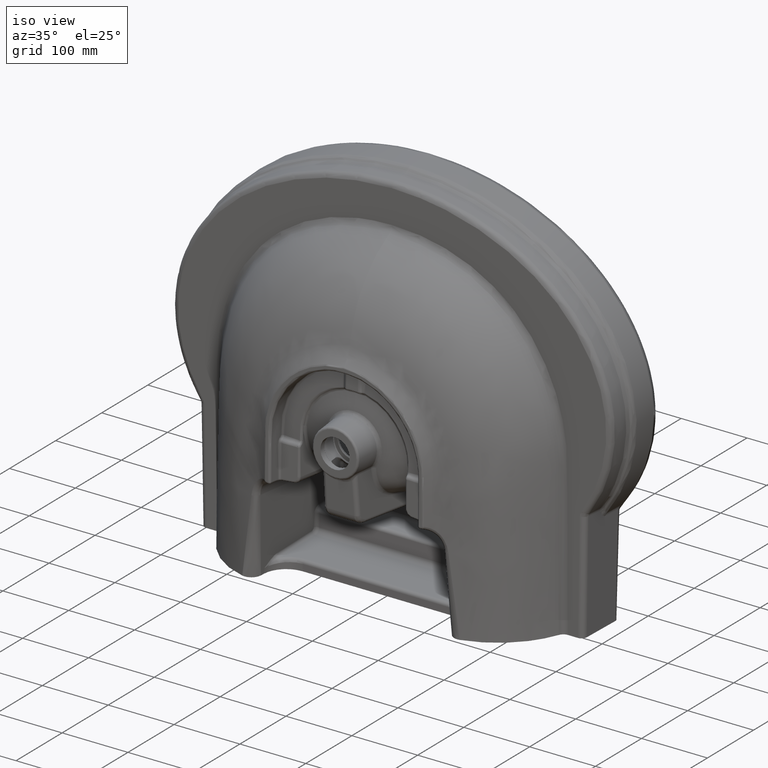
[diagram: clean part render]
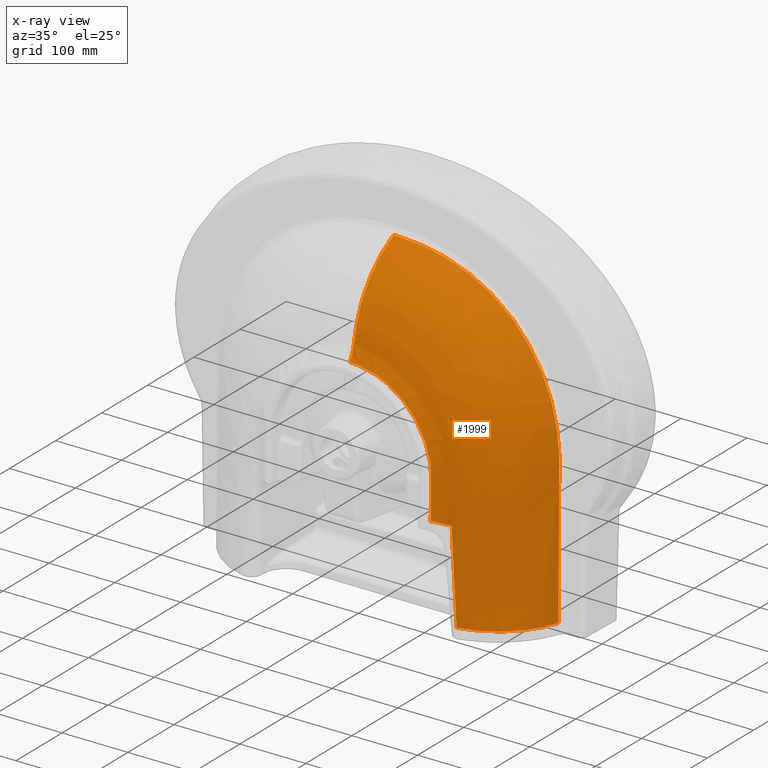
[diagram: x-ray — body ghosted, one internal face saturated and labeled with its STEP entity id]
A machine part, iso view, then the same camera in x-ray: the body is ghosted and one INTERNAL B-rep face — a face not visible from any outside direction — is saturated and labeled: STEP entity #1999.
In plain terms, the highlighted face is a freeform B-spline surface patch.
Its self-contained STEP definition (entity closure, byte-faithful):
#257=B_SPLINE_SURFACE_WITH_KNOTS('',3,3,((#39807,#39808,#39809,#39810,#39811,
#39812,#39813,#39814,#39815,#39816,#39817,#39818,#39819,#39820,#39821,#39822,
#39823,#39824,#39825,#39826,#39827,#39828,#39829,#39830,#39831,#39832,#39833,
#39834,#39835),(#39836,#39837,#39838,#39839,#39840,#39841,#39842,#39843,
#39844,#39845,#39846,#39847,#39848,#39849,#39850,#39851,#39852,#39853,#39854,
#39855,#39856,#39857,#39858,#39859,#39860,#39861,#39862,#39863,#39864),
(#39865,#39866,#39867,#39868,#39869,#39870,#39871,#39872,#39873,#39874,
#39875,#39876,#39877,#39878,#39879,#39880,#39881,#39882,#39883,#39884,#39885,
#39886,#39887,#39888,#39889,#39890,#39891,#39892,#39893),(#39894,#39895,
#39896,#39897,#39898,#39899,#39900,#39901,#39902,#39903,#39904,#39905,#39906,
#39907,#39908,#39909,#39910,#39911,#39912,#39913,#39914,#39915,#39916,#39917,
#39918,#39919,#39920,#39921,#39922),(#39923,#39924,#39925,#39926,#39927,
#39928,#39929,#39930,#39931,#39932,#39933,#39934,#39935,#39936,#39937,#39938,
#39939,#39940,#39941,#39942,#39943,#39944,#39945,#39946,#39947,#39948,#39949,
#39950,#39951),(#39952,#39953,#39954,#39955,#39956,#39957,#39958,#39959,
#39960,#39961,#39962,#39963,#39964,#39965,#39966,#39967,#39968,#39969,#39970,
#39971,#39972,#39973,#39974,#39975,#39976,#39977,#39978,#39979,#39980),
(#39981,#39982,#39983,#39984,#39985,#39986,#39987,#39988,#39989,#39990,
#39991,#39992,#39993,#39994,#39995,#39996,#39997,#39998,#39999,#40000,#40001,
#40002,#40003,#40004,#40005,#40006,#40007,#40008,#40009),(#40010,#40011,
#40012,#40013,#40014,#40015,#40016,#40017,#40018,#40019,#40020,#40021,#40022,
#40023,#40024,#40025,#40026,#40027,#40028,#40029,#40030,#40031,#40032,#40033,
#40034,#40035,#40036,#40037,#40038),(#40039,#40040,#40041,#40042,#40043,
#40044,#40045,#40046,#40047,#40048,#40049,#40050,#40051,#40052,#40053,#40054,
#40055,#40056,#40057,#40058,#40059,#40060,#40061,#40062,#40063,#40064,#40065,
#40066,#40067),(#40068,#40069,#40070,#40071,#40072,#40073,#40074,#40075,
#40076,#40077,#40078,#40079,#40080,#40081,#40082,#40083,#40084,#40085,#40086,
#40087,#40088,#40089,#40090,#40091,#40092,#40093,#40094,#40095,#40096),
(#40097,#40098,#40099,#40100,#40101,#40102,#40103,#40104,#40105,#40106,
#40107,#40108,#40109,#40110,#40111,#40112,#40113,#40114,#40115,#40116,#40117,
#40118,#40119,#40120,#40121,#40122,#40123,#40124,#40125),(#40126,#40127,
#40128,#40129,#40130,#40131,#40132,#40133,#40134,#40135,#40136,#40137,#40138,
#40139,#40140,#40141,#40142,#40143,#40144,#40145,#40146,#40147,#40148,#40149,
#40150,#40151,#40152,#40153,#40154),(#40155,#40156,#40157,#40158,#40159,
#40160,#40161,#40162,#40163,#40164,#40165,#40166,#40167,#40168,#40169,#40170,
#40171,#40172,#40173,#40174,#40175,#40176,#40177,#40178,#40179,#40180,#40181,
#40182,#40183),(#40184,#40185,#40186,#40187,#40188,#40189,#40190,#40191,
#40192,#40193,#40194,#40195,#40196,#40197,#40198,#40199,#40200,#40201,#40202,
#40203,#40204,#40205,#40206,#40207,#40208,#40209,#40210,#40211,#40212),
(#40213,#40214,#40215,#40216,#40217,#40218,#40219,#40220,#40221,#40222,
#40223,#40224,#40225,#40226,#40227,#40228,#40229,#40230,#40231,#40232,#40233,
#40234,#40235,#40236,#40237,#40238,#40239,#40240,#40241),(#40242,#40243,
#40244,#40245,#40246,#40247,#40248,#40249,#40250,#40251,#40252,#40253,#40254,
#40255,#40256,#40257,#40258,#40259,#40260,#40261,#40262,#40263,#40264,#40265,
#40266,#40267,#40268,#40269,#40270),(#40271,#40272,#40273,#40274,#40275,
#40276,#40277,#40278,#40279,#40280,#40281,#40282,#40283,#40284,#40285,#40286,
#40287,#40288,#40289,#40290,#40291,#40292,#40293,#40294,#40295,#40296,#40297,
#40298,#40299),(#40300,#40301,#40302,#40303,#40304,#40305,#40306,#40307,
#40308,#40309,#40310,#40311,#40312,#40313,#40314,#40315,#40316,#40317,#40318,
#40319,#40320,#40321,#40322,#40323,#40324,#40325,#40326,#40327,#40328),
(#40329,#40330,#40331,#40332,#40333,#40334,#40335,#40336,#40337,#40338,
#40339,#40340,#40341,#40342,#40343,#40344,#40345,#40346,#40347,#40348,#40349,
#40350,#40351,#40352,#40353,#40354,#40355,#40356,#40357),(#40358,#40359,
#40360,#40361,#40362,#40363,#40364,#40365,#40366,#40367,#40368,#40369,#40370,
#40371,#40372,#40373,#40374,#40375,#40376,#40377,#40378,#40379,#40380,#40381,
#40382,#40383,#40384,#40385,#40386),(#40387,#40388,#40389,#40390,#40391,
#40392,#40393,#40394,#40395,#40396,#40397,#40398,#40399,#40400,#40401,#40402,
#40403,#40404,#40405,#40406,#40407,#40408,#40409,#40410,#40411,#40412,#40413,
#40414,#40415),(#40416,#40417,#40418,#40419,#40420,#40421,#40422,#40423,
#40424,#40425,#40426,#40427,#40428,#40429,#40430,#40431,#40432,#40433,#40434,
#40435,#40436,#40437,#40438,#40439,#40440,#40441,#40442,#40443,#40444),
(#40445,#40446,#40447,#40448,#40449,#40450,#40451,#40452,#40453,#40454,
#40455,#40456,#40457,#40458,#40459,#40460,#40461,#40462,#40463,#40464,#40465,
#40466,#40467,#40468,#40469,#40470,#40471,#40472,#40473)),.UNSPECIFIED.,
 .F.,.F.,.F.,(4,3,1,1,1,1,1,1,1,1,1,1,1,1,1,1,1,1,4),(4,1,1,1,1,1,1,1,1,
1,1,1,1,1,1,1,1,1,1,1,1,1,1,1,1,1,4),(0.,0.0099009900990099,0.268155350760021,
0.398758619492195,0.529361888224369,0.659965156956543,0.72526679132263,
0.757917608505673,0.790568425688717,0.82321924287176,0.839544651463282,
0.855870060054804,0.872195468646325,0.888520877237847,0.904846285829369,
0.921171694420891,0.953822511603934,0.986473328786978,1.),(0.,0.0635975762746257,
0.127194518861133,0.19079146144764,0.254388404034147,0.317985346620654,
0.381582289207161,0.413380760500414,0.445179231793668,0.476977703086921,
0.508776174380175,0.524675410026802,0.540574645673429,0.572373116966682,
0.604171588259936,0.620070823906562,0.635970059553189,0.651869295199816,
0.667768530846443,0.683667766493069,0.699567002139696,0.73136547343295,
0.763163944726203,0.82676088731271,0.890357829899217,0.953954772485724,
1.),.UNSPECIFIED.);
#1455=B_SPLINE_CURVE_WITH_KNOTS('',3,(#37507,#37508,#37509,#37510,#37511,
#37512,#37513,#37514,#37515,#37516,#37517,#37518,#37519,#37520),
 .UNSPECIFIED.,.F.,.F.,(4,2,2,2,2,2,4),(0.,0.25,0.375,0.5,0.75,0.875,1.),
 .UNSPECIFIED.);
#1497=B_SPLINE_CURVE_WITH_KNOTS('',3,(#39226,#39227,#39228,#39229,#39230,
#39231,#39232,#39233,#39234,#39235,#39236,#39237,#39238,#39239,#39240,#39241,
#39242,#39243,#39244,#39245,#39246,#39247,#39248,#39249,#39250,#39251,#39252,
#39253,#39254,#39255,#39256,#39257,#39258,#39259,#39260,#39261,#39262,#39263,
#39264,#39265,#39266,#39267,#39268,#39269,#39270,#39271,#39272,#39273,#39274,
#39275,#39276,#39277,#39278,#39279,#39280,#39281,#39282,#39283,#39284,#39285,
#39286,#39287,#39288,#39289,#39290,#39291,#39292,#39293,#39294,#39295,#39296,
#39297,#39298,#39299,#39300,#39301,#39302,#39303,#39304,#39305,#39306,#39307,
#39308,#39309,#39310,#39311,#39312,#39313,#39314,#39315,#39316,#39317,#39318,
#39319,#39320,#39321,#39322,#39323,#39324,#39325,#39326,#39327,#39328,#39329,
#39330,#39331,#39332,#39333,#39334,#39335,#39336,#39337,#39338,#39339,#39340,
#39341,#39342,#39343,#39344,#39345,#39346,#39347,#39348,#39349,#39350,#39351,
#39352,#39353,#39354,#39355,#39356,#39357,#39358,#39359,#39360,#39361,#39362,
#39363,#39364,#39365,#39366,#39367,#39368,#39369,#39370,#39371,#39372,#39373,
#39374),.UNSPECIFIED.,.F.,.F.,(4,2,2,2,2,2,2,1,1,1,2,2,2,2,2,2,1,1,2,2,
2,2,2,1,1,1,1,1,2,2,2,2,2,1,1,2,2,2,1,1,2,2,2,2,2,2,2,2,2,2,1,1,1,2,2,2,
2,2,2,2,2,2,1,1,1,2,2,2,2,2,2,1,2,2,2,1,1,1,1,2,2,2,1,1,1,1,2,2,4),(0.,
0.0312500000000099,0.0625000000000199,0.0937500000000299,0.109375000000035,
0.117187500000037,0.121093750000039,0.123046875000039,0.12402343750004,
0.12451171875004,0.12475585937504,0.12500000000004,0.187500000000062,0.218750000000073,
0.234375000000079,0.242187500000081,0.246093750000083,0.248046875000083,
0.249023437500084,0.250000000000084,0.281250000000092,0.296875000000096,
0.304687500000099,0.3085937500001,0.3105468750001,0.3115234375001,0.3120117187501,
0.312255859375101,0.312377929687601,0.3125000000001,0.320312500000101,0.324218750000101,
0.326171875000101,0.327148437500101,0.327636718750101,0.327880859375101,
0.328125000000101,0.335937500000099,0.339843750000098,0.341796875000098,
0.342773437500098,0.343750000000098,0.359375000000095,0.367187500000094,
0.371093750000093,0.373046875000093,0.375000000000093,0.437500000000086,
0.468750000000082,0.48437500000008,0.49218750000008,0.496093750000079,0.498046875000079,
0.499023437500079,0.500000000000079,0.531250000000074,0.546875000000071,
0.55468750000007,0.562500000000068,0.593750000000063,0.609375000000061,
0.617187500000059,0.621093750000059,0.623046875000059,0.624023437500058,
0.624511718750058,0.625000000000058,0.656250000000055,0.671875000000053,
0.679687500000053,0.683593750000052,0.685546875000052,0.686523437500052,
0.687500000000052,0.718750000000048,0.734375000000046,0.742187500000045,
0.746093750000044,0.748046875000044,0.749023437500044,0.750000000000044,
0.812500000000033,0.843750000000027,0.859375000000024,0.867187500000023,
0.871093750000022,0.873046875000021,0.875000000000021,1.),.UNSPECIFIED.);
#1498=B_SPLINE_CURVE_WITH_KNOTS('',3,(#39621,#39622,#39623,#39624,#39625,
#39626,#39627,#39628,#39629,#39630,#39631,#39632,#39633,#39634,#39635,#39636,
#39637,#39638,#39639,#39640,#39641,#39642,#39643,#39644,#39645,#39646,#39647,
#39648,#39649,#39650,#39651,#39652,#39653,#39654,#39655,#39656,#39657,#39658,
#39659,#39660,#39661,#39662,#39663,#39664,#39665,#39666,#39667,#39668,#39669,
#39670,#39671,#39672,#39673,#39674,#39675,#39676,#39677,#39678,#39679,#39680,
#39681,#39682,#39683,#39684,#39685,#39686,#39687,#39688,#39689,#39690,#39691,
#39692,#39693,#39694,#39695,#39696,#39697,#39698,#39699,#39700,#39701,#39702,
#39703,#39704,#39705,#39706,#39707,#39708,#39709,#39710,#39711,#39712,#39713,
#39714,#39715,#39716,#39717,#39718,#39719,#39720,#39721,#39722,#39723,#39724,
#39725,#39726,#39727,#39728,#39729,#39730,#39731,#39732,#39733,#39734,#39735,
#39736,#39737,#39738,#39739,#39740,#39741,#39742,#39743,#39744,#39745,#39746,
#39747,#39748,#39749,#39750,#39751,#39752,#39753,#39754,#39755,#39756,#39757,
#39758,#39759,#39760,#39761,#39762,#39763,#39764,#39765,#39766,#39767,#39768),
 .UNSPECIFIED.,.F.,.F.,(4,2,2,1,1,2,2,2,1,1,2,2,2,2,2,2,1,1,1,2,2,2,2,1,
1,1,2,2,2,2,1,1,2,2,2,2,2,2,2,1,1,2,2,2,2,1,2,2,2,2,2,2,2,2,2,2,2,2,2,2,
2,2,2,2,2,2,2,2,2,1,1,1,2,2,2,2,2,2,2,2,2,2,4),(0.,0.0312500000000219,0.046875000000033,
0.0546875000000385,0.0585937500000413,0.0605468750000426,0.062500000000044,
0.0937500000000658,0.109375000000077,0.117187500000082,0.121093750000085,
0.125000000000088,0.187500000000131,0.218750000000152,0.250000000000174,
0.265625000000185,0.27343750000019,0.277343750000193,0.279296875000194,
0.280273437500195,0.281250000000195,0.296875000000206,0.304687500000211,
0.308593750000213,0.310546875000215,0.311523437500215,0.312011718750215,
0.312500000000215,0.343750000000201,0.359375000000195,0.367187500000191,
0.37109375000019,0.373046875000189,0.375000000000188,0.390625000000181,
0.406250000000174,0.421875000000168,0.429687500000164,0.433593750000162,
0.435546875000162,0.436523437500161,0.437011718750161,0.437500000000161,
0.445312500000159,0.449218750000158,0.451171875000157,0.452148437500157,
0.453125000000156,0.460937500000154,0.464843750000153,0.466796875000153,
0.468750000000152,0.484375000000148,0.492187500000146,0.496093750000145,
0.500000000000144,0.562500000000126,0.570312500000124,0.578125000000122,
0.593750000000118,0.625000000000109,0.640625000000105,0.644531250000104,
0.648437500000102,0.6562500000001,0.687500000000091,0.718750000000083,0.734375000000078,
0.742187500000076,0.746093750000075,0.748046875000075,0.749023437500074,
0.749511718750074,0.750000000000074,0.812500000000056,0.843750000000047,
0.859375000000043,0.86718750000004,0.871093750000039,0.873046875000039,
0.875000000000038,0.937500000000019,1.),.UNSPECIFIED.);
#1499=B_SPLINE_CURVE_WITH_KNOTS('',3,(#39771,#39772,#39773,#39774,#39775,
#39776,#39777,#39778,#39779,#39780,#39781,#39782,#39783,#39784,#39785,#39786,
#39787,#39788,#39789,#39790),.UNSPECIFIED.,.F.,.F.,(4,1,1,1,1,1,1,1,1,1,
1,1,1,1,1,1,1,4),(0.,0.2604220836071,0.3924054129426,0.5243887422781,0.6563720716135,
0.7223637362813,0.7553595686151,0.788355400949,0.8213512332829,0.8378491494498,
0.8543470656167,0.8708449817837,0.8873428979506,0.9038408141175,0.9203387302845,
0.9533345626183,0.9863303949522,1.),.UNSPECIFIED.);
#1500=B_SPLINE_CURVE_WITH_KNOTS('',3,(#39791,#39792,#39793,#39794,#39795,
#39796,#39797),.UNSPECIFIED.,.F.,.F.,(4,3,4),(0.,0.360680080516982,1.),
 .UNSPECIFIED.);
#1501=B_SPLINE_CURVE_WITH_KNOTS('',3,(#39799,#39800,#39801,#39802,#39803,
#39804,#39805,#39806),.UNSPECIFIED.,.F.,.F.,(4,2,2,4),(0.,0.25,0.5,1.),
 .UNSPECIFIED.);
#1999=ADVANCED_FACE('',(#2464),#257,.T.);
#2464=FACE_OUTER_BOUND('',#2945,.F.);
#2945=EDGE_LOOP('',(#4985,#4986,#4987,#4988,#4989,#4990));
#4985=ORIENTED_EDGE('',*,*,#6938,.T.);
#4986=ORIENTED_EDGE('',*,*,#6939,.F.);
#4987=ORIENTED_EDGE('',*,*,#6936,.T.);
#4988=ORIENTED_EDGE('',*,*,#6871,.F.);
#4989=ORIENTED_EDGE('',*,*,#6940,.T.);
#4990=ORIENTED_EDGE('',*,*,#6941,.T.);
#5858=VERTEX_POINT('',#37506);
#5859=VERTEX_POINT('',#37521);
#5903=VERTEX_POINT('',#39375);
#5904=VERTEX_POINT('',#39769);
#5905=VERTEX_POINT('',#39770);
#5906=VERTEX_POINT('',#39798);
#6871=EDGE_CURVE('',#5858,#5859,#1455,.T.);
#6936=EDGE_CURVE('',#5903,#5859,#1497,.T.);
#6938=EDGE_CURVE('',#5904,#5905,#1498,.T.);
#6939=EDGE_CURVE('',#5903,#5905,#1499,.T.);
#6940=EDGE_CURVE('',#5858,#5906,#1500,.T.);
#6941=EDGE_CURVE('',#5906,#5904,#1501,.T.);
#37506=CARTESIAN_POINT('',(155.240323988207,-8.98329835694,-214.));
#37507=CARTESIAN_POINT('',(155.240323988199,-8.9832983569368,-214.));
#37508=CARTESIAN_POINT('',(166.313398588144,-6.92745681251476,-214.));
#37509=CARTESIAN_POINT('',(176.839514111981,-3.39119567451885,-214.));
#37510=CARTESIAN_POINT('',(191.88099442133,3.93692939859211,-214.));
#37511=CARTESIAN_POINT('',(196.791845295743,6.74999375375646,-214.));
#37512=CARTESIAN_POINT('',(206.076601967696,12.9349862763023,-214.));
#37513=CARTESIAN_POINT('',(210.481446765323,16.3161058597813,-214.));
#37514=CARTESIAN_POINT('',(222.998254698521,27.3072612211044,-214.));
#37515=CARTESIAN_POINT('',(230.472677892931,35.8838447616205,-214.));
#37516=CARTESIAN_POINT('',(239.66303899981,49.7790013110971,-214.));
#37517=CARTESIAN_POINT('',(242.41825295883,54.5991384706027,-214.));
#37518=CARTESIAN_POINT('',(247.311029622765,64.6169656776158,-214.));
#37519=CARTESIAN_POINT('',(249.453837870829,69.8358550252338,-214.000000000044));
#37520=CARTESIAN_POINT('',(251.238314044355,75.1716683857293,-214.000000000044));
#37521=CARTESIAN_POINT('',(251.2383140608,75.17166838023,-214.));
#39226=CARTESIAN_POINT('',(-7.08872204842208E-007,76.1893153710069,251.561181607224));
#39227=CARTESIAN_POINT('',(4.17886799085963,76.1893392858841,251.561191737898));
#39228=CARTESIAN_POINT('',(9.92520174568648,76.1914504143152,251.498702407506));
#39229=CARTESIAN_POINT('',(24.5166823438066,76.2084848263357,250.746025556634));
#39230=CARTESIAN_POINT('',(33.3662217380224,76.2235784048056,250.059070883959));
#39231=CARTESIAN_POINT('',(53.9968373429579,76.2759579866507,247.189235446219));
#39232=CARTESIAN_POINT('',(65.7847532355891,76.3135487188669,245.010084339232));
#39233=CARTESIAN_POINT('',(85.2940317591161,76.3865152441664,239.639164630474));
#39234=CARTESIAN_POINT('',(92.0984449792376,76.4135033683316,237.494794173218));
#39235=CARTESIAN_POINT('',(102.666715580257,76.4567230167955,233.596734493874));
#39236=CARTESIAN_POINT('',(106.249414545449,76.4715754265383,232.183569592094));
#39237=CARTESIAN_POINT('',(111.698759667488,76.4942589399431,229.872173345075));
#39238=CARTESIAN_POINT('',(113.52773915255,76.5018857910204,229.069722562946));
#39239=CARTESIAN_POINT('',(116.287907461452,76.5133893750816,227.815469038418));
#39240=CARTESIAN_POINT('',(117.672160123678,76.5191574789673,227.17571280479));
#39241=CARTESIAN_POINT('',(119.293913819093,76.5259093716071,226.406716503793));
#39242=CARTESIAN_POINT('',(120.106423615195,76.5292901231562,226.016500430276));
#39243=CARTESIAN_POINT('',(120.454984983222,76.5307399591728,225.848032791251));
#39244=CARTESIAN_POINT('',(120.687434637228,76.5317067161597,225.735446445657));
#39245=CARTESIAN_POINT('',(120.84663359539,76.5323687235789,225.65813173842));
#39246=CARTESIAN_POINT('',(139.701030988324,76.6107650608513,216.487368869425));
#39247=CARTESIAN_POINT('',(156.811208597063,76.6765586384772,204.999954083866));
#39248=CARTESIAN_POINT('',(179.266950846882,76.748453591847,185.129643316401));
#39249=CARTESIAN_POINT('',(186.221082671891,76.7683125177851,178.070741879866));
#39250=CARTESIAN_POINT('',(195.828046362995,76.7934731813288,166.977550183411));
#39251=CARTESIAN_POINT('',(198.893331647281,76.8010973444715,163.195767231932));
#39252=CARTESIAN_POINT('',(203.283622791807,76.8115892926236,157.414777161188));
#39253=CARTESIAN_POINT('',(204.712405807585,76.8149260738913,155.469705973265));
#39254=CARTESIAN_POINT('',(206.803873334152,76.8197457948662,152.527251962134));
#39255=CARTESIAN_POINT('',(207.836685072522,76.8221095611329,151.049813420191));
#39256=CARTESIAN_POINT('',(209.019091078494,76.8247992678273,149.315753804077));
#39257=CARTESIAN_POINT('',(209.521014173117,76.8259387582269,148.570412576215));
#39258=CARTESIAN_POINT('',(209.854558818013,76.8266956238189,148.07304130799));
#39259=CARTESIAN_POINT('',(210.040750066795,76.8271179036018,147.794112582388));
#39260=CARTESIAN_POINT('',(214.850424466797,76.8380233322996,140.561985851481));
#39261=CARTESIAN_POINT('',(219.137399152407,76.8479834238493,133.292188769187));
#39262=CARTESIAN_POINT('',(224.982183574822,76.8646123979724,122.076566603432));
#39263=CARTESIAN_POINT('',(226.832799234916,76.8704711584803,118.286243900987));
#39264=CARTESIAN_POINT('',(229.460975271989,76.8781592817647,112.531221792697));
#39265=CARTESIAN_POINT('',(230.312409498535,76.880538427097,110.601291282278));
#39266=CARTESIAN_POINT('',(231.552464405507,76.8836345623403,107.690027435003));
#39267=CARTESIAN_POINT('',(232.163218807529,76.8850651650728,106.230301748122));
#39268=CARTESIAN_POINT('',(232.859490298358,76.8864774568692,104.520367326398));
#39269=CARTESIAN_POINT('',(233.203550929357,76.8871127933358,103.663700783509));
#39270=CARTESIAN_POINT('',(233.374561711704,76.8874119514321,103.234946496016));
#39271=CARTESIAN_POINT('',(233.459812123774,76.8875568010148,103.020464577831));
#39272=CARTESIAN_POINT('',(233.496293366016,76.8876178550294,102.928521355469));
#39273=CARTESIAN_POINT('',(233.520602048893,76.8876583288528,102.867220901762));
#39274=CARTESIAN_POINT('',(233.543358066276,76.887695930386,102.809786985134));
#39275=CARTESIAN_POINT('',(233.6430971211,76.8878602766387,102.557977477842));
#39276=CARTESIAN_POINT('',(234.010066528281,76.8884140891249,101.63870918998));
#39277=CARTESIAN_POINT('',(234.927608270651,76.8890700585646,99.238466692212));
#39278=CARTESIAN_POINT('',(235.294087809224,76.8892478283481,98.2679449678274));
#39279=CARTESIAN_POINT('',(235.925260868538,76.8892025114544,96.5529831982971));
#39280=CARTESIAN_POINT('',(236.149192619002,76.8891340541135,95.9381220721482));
#39281=CARTESIAN_POINT('',(236.503898172526,76.888905371659,94.9504952351417));
#39282=CARTESIAN_POINT('',(236.685949617389,76.8887593588857,94.4403472421991));
#39283=CARTESIAN_POINT('',(236.906201669179,76.8885215495951,93.8164668079117));
#39284=CARTESIAN_POINT('',(237.002238159626,76.8884037469689,93.5429242872818));
#39285=CARTESIAN_POINT('',(237.066622897841,76.8883215189938,93.3591910526351));
#39286=CARTESIAN_POINT('',(237.116287146615,76.8882547122081,93.2171076259735));
#39287=CARTESIAN_POINT('',(237.619826441161,76.8875602873747,91.7747469918862));
#39288=CARTESIAN_POINT('',(238.100702618561,76.8864393575796,90.3573197391641));
#39289=CARTESIAN_POINT('',(238.809692319492,76.8839825232859,88.2030068833146));
#39290=CARTESIAN_POINT('',(239.161109866499,76.8825640490357,87.118805074191));
#39291=CARTESIAN_POINT('',(239.565464759047,76.8805747128495,85.8415608770452));
#39292=CARTESIAN_POINT('',(239.737526156278,76.8796503033014,85.2915247552003));
#39293=CARTESIAN_POINT('',(239.851956664969,76.8790180485471,84.9242459589457));
#39294=CARTESIAN_POINT('',(239.896583136791,76.8787665538123,84.78059722043));
#39295=CARTESIAN_POINT('',(241.076160749453,76.8718859506844,80.9638901704725));
#39296=CARTESIAN_POINT('',(241.936591527179,76.8640068420497,77.9038214349492));
#39297=CARTESIAN_POINT('',(242.946558893399,76.8530216582095,74.1436066472059));
#39298=CARTESIAN_POINT('',(243.236067362613,76.8494822078374,73.0283331831268));
#39299=CARTESIAN_POINT('',(243.608096322597,76.8446025741251,71.5651021502743));
#39300=CARTESIAN_POINT('',(243.721711279053,76.8430469278155,71.1122960980034));
#39301=CARTESIAN_POINT('',(243.877400409786,76.840843908249,70.4857272951172));
#39302=CARTESIAN_POINT('',(243.926839827001,76.8401312593042,70.2856438859813));
#39303=CARTESIAN_POINT('',(244.020931078302,76.8387528593308,69.9030562088123));
#39304=CARTESIAN_POINT('',(244.055135669381,76.8382452886744,69.7634363903999));
#39305=CARTESIAN_POINT('',(245.79631056202,76.8118823952056,62.6161600018868));
#39306=CARTESIAN_POINT('',(247.245828983973,76.7766673499588,55.4186634844549));
#39307=CARTESIAN_POINT('',(248.989080026769,76.7066792937695,44.2440345557143));
#39308=CARTESIAN_POINT('',(249.498675793988,76.6805114957845,40.4563743425205));
#39309=CARTESIAN_POINT('',(250.14877844569,76.636793078969,34.6855519770255));
#39310=CARTESIAN_POINT('',(250.346535277029,76.621513502398,32.7469087511561));
#39311=CARTESIAN_POINT('',(250.613307281783,76.5972972088526,29.8179643571435));
#39312=CARTESIAN_POINT('',(250.739175312263,76.5848457358151,28.348327767292));
#39313=CARTESIAN_POINT('',(250.872338171371,76.5695891234005,26.6253906159781));
#39314=CARTESIAN_POINT('',(250.935431667095,76.5617616924232,25.7619192660965));
#39315=CARTESIAN_POINT('',(250.961717097125,76.5583626128377,25.3914403979619));
#39316=CARTESIAN_POINT('',(250.979072213123,76.5560864773308,25.1443622729373));
#39317=CARTESIAN_POINT('',(250.990858429318,76.554512481958,24.9743840986787));
#39318=CARTESIAN_POINT('',(251.166277851413,76.530839451916,22.4255386764563));
#39319=CARTESIAN_POINT('',(251.300922672832,76.505543378676,19.9563947659122));
#39320=CARTESIAN_POINT('',(251.449602939432,76.4661869397605,16.246995831122));
#39321=CARTESIAN_POINT('',(251.490286391611,76.4528462853313,15.0095147433417));
#39322=CARTESIAN_POINT('',(251.538033789389,76.4328006785909,13.15042680832));
#39323=CARTESIAN_POINT('',(251.55176085262,76.426115066404,12.530247156868));
#39324=CARTESIAN_POINT('',(251.575344318216,76.4128279415022,11.2885733956509));
#39325=CARTESIAN_POINT('',(251.58462428098,76.4066857530353,10.7109637718218));
#39326=CARTESIAN_POINT('',(251.628378866172,76.3718207978466,7.37991693542925));
#39327=CARTESIAN_POINT('',(251.632530937816,76.3479188585332,4.797919969851));
#39328=CARTESIAN_POINT('',(251.625476821981,76.3205071748665,1.04332774692463));
#39329=CARTESIAN_POINT('',(251.620710578326,76.3125779807378,-0.18757286734015));
#39330=CARTESIAN_POINT('',(251.612718153157,76.302033967394,-2.00033526467998));
#39331=CARTESIAN_POINT('',(251.609906945716,76.2987451746658,-2.59899664847309));
#39332=CARTESIAN_POINT('',(251.605760563274,76.2941009107782,-3.48831517640842));
#39333=CARTESIAN_POINT('',(251.603704413169,76.2918510895346,-3.93080651589107));
#39334=CARTESIAN_POINT('',(251.601393217859,76.2893427477731,-4.44319510004845));
#39335=CARTESIAN_POINT('',(251.600266336974,76.2881164870583,-4.69841972990965));
#39336=CARTESIAN_POINT('',(251.599790261197,76.2875968000353,-4.80759320496652));
#39337=CARTESIAN_POINT('',(251.599474483545,76.2872516287451,-4.88032910673236));
#39338=CARTESIAN_POINT('',(251.599173313436,76.2869217117331,-4.95016877693743));
#39339=CARTESIAN_POINT('',(251.598382978689,76.2860551857474,-5.13389579481941));
#39340=CARTESIAN_POINT('',(251.591390281288,76.2788818153976,-6.52605731312258));
#39341=CARTESIAN_POINT('',(251.580445922553,76.2607964466242,-10.4418170290517));
#39342=CARTESIAN_POINT('',(251.576895720885,76.2535942786423,-12.0518898222506));
#39343=CARTESIAN_POINT('',(251.572379171236,76.2403925972337,-14.9209450821358));
#39344=CARTESIAN_POINT('',(251.570984928817,76.2355577178226,-15.952778598973));
#39345=CARTESIAN_POINT('',(251.568961667435,76.2274970713519,-17.6129576651345));
#39346=CARTESIAN_POINT('',(251.568299453043,76.2246806577981,-18.1851154112678));
#39347=CARTESIAN_POINT('',(251.567305816621,76.2202632067887,-19.0715084953181));
#39348=CARTESIAN_POINT('',(251.566808763313,76.2180063361935,-19.5217444850744));
#39349=CARTESIAN_POINT('',(251.566306335266,76.2156781404702,-19.9825446749429));
#39350=CARTESIAN_POINT('',(251.565969515543,76.2141103060603,-20.2920932086711));
#39351=CARTESIAN_POINT('',(251.56574907646,76.2130790798087,-20.4950984106852));
#39352=CARTESIAN_POINT('',(251.561804764168,76.1945961575797,-24.1272882552013));
#39353=CARTESIAN_POINT('',(251.55720015978,76.1759490432162,-27.6463346378626));
#39354=CARTESIAN_POINT('',(251.547328883562,76.1482250012379,-32.9272888342378));
#39355=CARTESIAN_POINT('',(251.541904478727,76.1343418708162,-35.5679250443443));
#39356=CARTESIAN_POINT('',(251.535191893809,76.1181162034971,-38.64898083736));
#39357=CARTESIAN_POINT('',(251.531798473376,76.109997232843,-40.1895915099157));
#39358=CARTESIAN_POINT('',(251.530099843569,76.1059363424771,-40.9599180888739));
#39359=CARTESIAN_POINT('',(251.529372236844,76.1041956736587,-41.2900626620773));
#39360=CARTESIAN_POINT('',(251.528887337223,76.1030351654889,-41.5101600753659));
#39361=CARTESIAN_POINT('',(251.528765722615,76.1027441569516,-41.565351518809));
#39362=CARTESIAN_POINT('',(251.505171769421,76.0462206574958,-52.284340308486));
#39363=CARTESIAN_POINT('',(251.487690735359,75.9914835268679,-62.8436846455516));
#39364=CARTESIAN_POINT('',(251.459136263256,75.9084241180755,-78.6777048088767));
#39365=CARTESIAN_POINT('',(251.444702832858,75.866768318924,-86.5941099304455));
#39366=CARTESIAN_POINT('',(251.428051687175,75.8180639889712,-95.8296023047434));
#39367=CARTESIAN_POINT('',(251.419830725498,75.7936996804899,-100.447363169977));
#39368=CARTESIAN_POINT('',(251.415753603282,75.781516281294,-102.756258905422));
#39369=CARTESIAN_POINT('',(251.414014185511,75.7762947495595,-103.745790174626));
#39370=CARTESIAN_POINT('',(251.412856419519,75.7728137330635,-104.405478831547));
#39371=CARTESIAN_POINT('',(251.412348128912,75.7712833838448,-104.695496365375));
#39372=CARTESIAN_POINT('',(251.370314987542,75.6444911578564,-128.72423541799));
#39373=CARTESIAN_POINT('',(251.308404168179,75.448585863002,-165.037511035528));
#39374=CARTESIAN_POINT('',(251.238314044355,75.1716683857295,-214.000000000045));
#39375=CARTESIAN_POINT('',(-7.088721922608E-007,76.18931534412,251.5611816655));
#39621=CARTESIAN_POINT('',(122.798616366285,-18.7712792439894,-72.7651196785702));
#39622=CARTESIAN_POINT('',(122.798255105888,-18.7633059499596,-69.7439518336953));
#39623=CARTESIAN_POINT('',(122.798447190768,-18.7521245754128,-66.8263580492792));
#39624=CARTESIAN_POINT('',(122.797370947372,-18.7314291439616,-62.6017519464647));
#39625=CARTESIAN_POINT('',(122.796957062559,-18.7238367143856,-61.2188896428755));
#39626=CARTESIAN_POINT('',(122.796454651683,-18.7113961356026,-59.1823908521747));
#39627=CARTESIAN_POINT('',(122.79623315568,-18.7049126625572,-58.1735918151703));
#39628=CARTESIAN_POINT('',(122.796071147188,-18.6968839534526,-57.013160020129));
#39629=CARTESIAN_POINT('',(122.796027143652,-18.6933429791247,-56.5193642410316));
#39630=CARTESIAN_POINT('',(122.796003989397,-18.6909600243115,-56.1909515752288));
#39631=CARTESIAN_POINT('',(122.795994398816,-18.6894991446806,-55.9923674382167));
#39632=CARTESIAN_POINT('',(122.795927731162,-18.6732539767304,-53.8052866805613));
#39633=CARTESIAN_POINT('',(122.796361881672,-18.6553205081468,-51.6878742293722));
#39634=CARTESIAN_POINT('',(122.79717465163,-18.6244962602204,-48.4236415938134));
#39635=CARTESIAN_POINT('',(122.797622115026,-18.6081025615605,-46.7695004917962));
#39636=CARTESIAN_POINT('',(122.798095351446,-18.5872616369385,-44.801246721911));
#39637=CARTESIAN_POINT('',(122.798275198512,-18.5779621940379,-43.9494918342915));
#39638=CARTESIAN_POINT('',(122.798388612193,-18.5716808453256,-43.3798309645436));
#39639=CARTESIAN_POINT('',(122.798449397743,-18.5680408304271,-43.0533059190293));
#39640=CARTESIAN_POINT('',(122.799163885627,-18.5210542968817,-38.8734930108915));
#39641=CARTESIAN_POINT('',(122.794994357835,-18.4782352539015,-35.4024181681298));
#39642=CARTESIAN_POINT('',(122.787994123346,-18.41417306971,-30.8887311731616));
#39643=CARTESIAN_POINT('',(122.785628068231,-18.3927783736659,-29.4998303676837));
#39644=CARTESIAN_POINT('',(122.783128733395,-18.3501194840829,-26.9518216997034));
#39645=CARTESIAN_POINT('',(122.782933758695,-18.3301083591741,-25.8492256639991));
#39646=CARTESIAN_POINT('',(122.786608828783,-18.2970026441569,-24.1960088266134));
#39647=CARTESIAN_POINT('',(122.788658395483,-18.284562967595,-23.6043240894854));
#39648=CARTESIAN_POINT('',(122.792631284178,-18.2640238475162,-22.6553616341091));
#39649=CARTESIAN_POINT('',(122.794852691832,-18.2532785489939,-22.1655370147622));
#39650=CARTESIAN_POINT('',(122.797884808996,-18.2399036605502,-21.567259575649));
#39651=CARTESIAN_POINT('',(122.799518438855,-18.2330042903152,-21.2614255591224));
#39652=CARTESIAN_POINT('',(122.800244675985,-18.2300017183505,-21.1289201731534));
#39653=CARTESIAN_POINT('',(122.800734749426,-18.2279898121766,-21.0402647849965));
#39654=CARTESIAN_POINT('',(122.800742018182,-18.2279532865752,-21.0385944303889));
#39655=CARTESIAN_POINT('',(122.809101531601,-18.1941116132777,-19.551729144138));
#39656=CARTESIAN_POINT('',(122.813984509187,-18.1707720215042,-18.495527659304));
#39657=CARTESIAN_POINT('',(122.819468268522,-18.1470243104244,-17.4285898028129));
#39658=CARTESIAN_POINT('',(122.820898733844,-18.1410246646144,-17.1590754995155));
#39659=CARTESIAN_POINT('',(122.822372450702,-18.1349002602188,-16.8839035509958));
#39660=CARTESIAN_POINT('',(122.822940299292,-18.1325575091849,-16.7785915495344));
#39661=CARTESIAN_POINT('',(122.823291313614,-18.1310861884855,-16.7121883438983));
#39662=CARTESIAN_POINT('',(122.823387886498,-18.1306662327647,-16.6931006993132));
#39663=CARTESIAN_POINT('',(122.823412287089,-18.1305539171179,-16.6879446134608));
#39664=CARTESIAN_POINT('',(122.823424773815,-18.1304940778619,-16.6851792907742));
#39665=CARTESIAN_POINT('',(122.823328651772,-18.1310792253689,-16.7131435051205));
#39666=CARTESIAN_POINT('',(122.830019499696,-18.0906213044134,-14.7812500532099));
#39667=CARTESIAN_POINT('',(122.8273319356,-18.0597422828051,-12.9704276915285));
#39668=CARTESIAN_POINT('',(122.800619000242,-18.025002891043,-10.3952452183497));
#39669=CARTESIAN_POINT('',(122.78798804852,-18.0153672026821,-9.56033074186552));
#39670=CARTESIAN_POINT('',(122.762796283575,-18.0037087376894,-8.34345438161871));
#39671=CARTESIAN_POINT('',(122.748643282768,-17.9985792905352,-7.74388791646902));
#39672=CARTESIAN_POINT('',(122.729305085117,-17.9938030651898,-7.05995853200494));
#39673=CARTESIAN_POINT('',(122.720403258433,-17.9920138117852,-6.77018423392227));
#39674=CARTESIAN_POINT('',(122.714331384842,-17.990878124811,-6.57774351337805));
#39675=CARTESIAN_POINT('',(122.712247179362,-17.9905030699975,-6.51259233829219));
#39676=CARTESIAN_POINT('',(122.674500550092,-17.9844283928768,-5.37700666138327));
#39677=CARTESIAN_POINT('',(122.63181849119,-17.9820456089028,-4.36842426580832));
#39678=CARTESIAN_POINT('',(122.525845295716,-17.9826150030816,-2.35496435002783));
#39679=CARTESIAN_POINT('',(122.458647812599,-17.9858841776403,-1.29857211357465));
#39680=CARTESIAN_POINT('',(122.314968578937,-17.9970354636136,0.604942901918431));
#39681=CARTESIAN_POINT('',(122.224374209191,-18.0064609748594,1.64499385215321));
#39682=CARTESIAN_POINT('',(122.050524721155,-18.0258740366272,3.33462652629896));
#39683=CARTESIAN_POINT('',(121.986197523514,-18.0332275008139,3.91943227240571));
#39684=CARTESIAN_POINT('',(121.878368588665,-18.0455597122015,4.8287148724098));
#39685=CARTESIAN_POINT('',(121.84053168431,-18.0498877957934,5.13715515352437));
#39686=CARTESIAN_POINT('',(121.780672877649,-18.0567067338366,5.6077994955452));
#39687=CARTESIAN_POINT('',(121.749967160415,-18.0601979457606,5.84511770115478));
#39688=CARTESIAN_POINT('',(121.712722901944,-18.0644146937229,6.1254749262323));
#39689=CARTESIAN_POINT('',(121.696449582663,-18.0662527536285,6.24637430513907));
#39690=CARTESIAN_POINT('',(121.68553069376,-18.067485001215,6.32713965359328));
#39691=CARTESIAN_POINT('',(121.675735003385,-18.0685891487036,6.39914465944806));
#39692=CARTESIAN_POINT('',(121.654848643691,-18.0709422481506,6.55229677061081));
#39693=CARTESIAN_POINT('',(121.60384313787,-18.0769316207492,6.92728084505127));
#39694=CARTESIAN_POINT('',(121.470913018079,-18.0911506035689,7.83364356234617));
#39695=CARTESIAN_POINT('',(121.417075368983,-18.0967576958793,8.19304926663723));
#39696=CARTESIAN_POINT('',(121.319486694586,-18.1064030904161,8.8175876052503));
#39697=CARTESIAN_POINT('',(121.266461299835,-18.111534944051,9.15121439391312));
#39698=CARTESIAN_POINT('',(121.206496681537,-18.1171192573024,9.51676268316831));
#39699=CARTESIAN_POINT('',(121.164906800056,-18.120941513358,9.7675403314957));
#39700=CARTESIAN_POINT('',(121.136405559533,-18.1235202032114,9.93718597875178));
#39701=CARTESIAN_POINT('',(120.996490291513,-18.1360496568599,10.7628734448872));
#39702=CARTESIAN_POINT('',(120.873684302526,-18.146140817209,11.4443019334969));
#39703=CARTESIAN_POINT('',(120.696022016224,-18.1598825015304,12.3885621111588));
#39704=CARTESIAN_POINT('',(120.637886224828,-18.1642295201372,12.6903334941927));
#39705=CARTESIAN_POINT('',(120.552779293958,-18.170413413712,13.1236149307162));
#39706=CARTESIAN_POINT('',(120.524759384401,-18.1724185562092,13.264812706882));
#39707=CARTESIAN_POINT('',(120.469491188272,-18.1763182618734,13.5407646038056));
#39708=CARTESIAN_POINT('',(120.452243307301,-18.1775269369401,13.6264848305743));
#39709=CARTESIAN_POINT('',(120.120793802742,-18.200259706575,15.2516449874157));
#39710=CARTESIAN_POINT('',(119.808011268079,-18.2186342112544,16.6464670574488));
#39711=CARTESIAN_POINT('',(119.318950973833,-18.2442658577997,18.665974897181));
#39712=CARTESIAN_POINT('',(119.152613008556,-18.2524848027467,19.3270213774779));
#39713=CARTESIAN_POINT('',(118.899016822246,-18.2644002628739,20.3006291817622));
#39714=CARTESIAN_POINT('',(118.8138021437,-18.2683035268566,20.62217236242));
#39715=CARTESIAN_POINT('',(118.642158424729,-18.2759801502957,21.259301882629));
#39716=CARTESIAN_POINT('',(118.563659705343,-18.2794146119211,21.5463814471133));
#39717=CARTESIAN_POINT('',(116.950885462308,-18.3480590889161,27.3450954832509));
#39718=CARTESIAN_POINT('',(114.797314394438,-18.4127736954573,33.639399999641));
#39719=CARTESIAN_POINT('',(111.253249295414,-18.4774613318967,41.3614697459063));
#39720=CARTESIAN_POINT('',(110.843693732354,-18.484571797595,42.2282882460154));
#39721=CARTESIAN_POINT('',(109.991367008578,-18.4986547420437,43.9782541259321));
#39722=CARTESIAN_POINT('',(109.485250101741,-18.5066258378509,44.9876605114276));
#39723=CARTESIAN_POINT('',(107.994703920233,-18.528818635767,47.8599762020116));
#39724=CARTESIAN_POINT('',(106.94244373858,-18.5429389321072,49.7664493545342));
#39725=CARTESIAN_POINT('',(103.605397809096,-18.5833705352663,55.4490371780586));
#39726=CARTESIAN_POINT('',(101.139131716086,-18.6078041317212,59.1886558930325));
#39727=CARTESIAN_POINT('',(97.0703616650324,-18.6406238268227,64.6728528979483));
#39728=CARTESIAN_POINT('',(95.6526712467576,-18.6509205111722,66.4799676584052));
#39729=CARTESIAN_POINT('',(93.8035453686539,-18.6629677674808,68.7066440785901));
#39730=CARTESIAN_POINT('',(93.4473992842823,-18.6652232900078,69.1290262967134));
#39731=CARTESIAN_POINT('',(92.8134639361327,-18.6691239258307,69.8727699886623));
#39732=CARTESIAN_POINT('',(92.492224944107,-18.671042246164,70.2452976677877));
#39733=CARTESIAN_POINT('',(91.5154945110277,-18.6767022494344,71.3645358446347));
#39734=CARTESIAN_POINT('',(90.8469888505676,-18.6803489921683,72.1129049335015));
#39735=CARTESIAN_POINT('',(87.4150827508761,-18.6979625421019,75.8614342593688));
#39736=CARTESIAN_POINT('',(84.383051944182,-18.7100732308623,78.8824969210047));
#39737=CARTESIAN_POINT('',(77.6862810232405,-18.7305989725089,84.8441836351078));
#39738=CARTESIAN_POINT('',(74.0213943373125,-18.7390163553829,87.7850139216114));
#39739=CARTESIAN_POINT('',(68.0140746945057,-18.7489309222926,92.0195855230615));
#39740=CARTESIAN_POINT('',(65.9267597391612,-18.7517822464842,93.401414444879));
#39741=CARTESIAN_POINT('',(62.6665258066612,-18.7553785547298,95.4135209111546));
#39742=CARTESIAN_POINT('',(61.5582498056198,-18.7564637716969,96.0741010812321));
#39743=CARTESIAN_POINT('',(59.8634119624446,-18.7579202114097,97.047629455851));
#39744=CARTESIAN_POINT('',(59.0078883520919,-18.7586055738749,97.5300566035469));
#39745=CARTESIAN_POINT('',(57.9955803438808,-18.7593298130011,98.0848093593914));
#39746=CARTESIAN_POINT('',(57.4858763813291,-18.7596730420885,98.3601035922191));
#39747=CARTESIAN_POINT('',(57.2666710748295,-18.7598160864172,98.4776339421475));
#39748=CARTESIAN_POINT('',(57.1203651458763,-18.7599105477672,98.5558861159164));
#39749=CARTESIAN_POINT('',(57.0066638379876,-18.759982894888,98.6164976386226));
#39750=CARTESIAN_POINT('',(52.7679549255963,-18.7626611389594,100.872473664336));
#39751=CARTESIAN_POINT('',(47.8518980418644,-18.763816440472,103.178357991595));
#39752=CARTESIAN_POINT('',(39.3119576120285,-18.7637532367345,106.340421613214));
#39753=CARTESIAN_POINT('',(36.2715713885401,-18.7634271355775,107.344085870137));
#39754=CARTESIAN_POINT('',(31.4152636231566,-18.7624685442946,108.713574936629));
#39755=CARTESIAN_POINT('',(29.747270890768,-18.7620701944799,109.147315469069));
#39756=CARTESIAN_POINT('',(27.1714810812102,-18.7613469977033,109.755410685595));
#39757=CARTESIAN_POINT('',(26.3005895477503,-18.7610849413816,109.951017275977));
#39758=CARTESIAN_POINT('',(24.9758639358398,-18.7606590076024,110.232687707307));
#39759=CARTESIAN_POINT('',(24.5312231694952,-18.7605115643234,110.324619288649));
#39760=CARTESIAN_POINT('',(23.8596814431263,-18.7602819216394,110.459447825386));
#39761=CARTESIAN_POINT('',(23.6350710417417,-18.7602039583239,110.503879502291));
#39762=CARTESIAN_POINT('',(23.1843281877298,-18.7600451403918,110.591699747557));
#39763=CARTESIAN_POINT('',(22.9050568373568,-18.7599450034063,110.645125511593));
#39764=CARTESIAN_POINT('',(17.1712305845336,-18.7578643851739,111.728165219222));
#39765=CARTESIAN_POINT('',(12.4497339076462,-18.7565938239201,112.225375683406));
#39766=CARTESIAN_POINT('',(4.84639652322795,-18.7547828310848,112.759661707746));
#39767=CARTESIAN_POINT('',(1.95974182833027,-18.7542839424746,112.796341688854));
#39768=CARTESIAN_POINT('',(1.66663218544922E-005,-18.7542828421912,112.79634215713));
#39769=CARTESIAN_POINT('',(122.7986132039,-18.77127420007,-72.76511969226));
#39770=CARTESIAN_POINT('',(1.666632185E-005,-18.75428280238,112.7963421322));
#39771=CARTESIAN_POINT('',(-7.088721922608E-007,76.18931534412,251.5611816655));
#39772=CARTESIAN_POINT('',(-5.895639785837E-007,62.78450911762,245.3766157543));
#39773=CARTESIAN_POINT('',(-8.12828459494E-005,43.95823073787,233.0382314559));
#39774=CARTESIAN_POINT('',(-2.856577884206E-005,23.24863191448,211.5826480485));
#39775=CARTESIAN_POINT('',(3.247967805503E-005,10.19905730822,193.230595299));
#39776=CARTESIAN_POINT('',(-0.0001954300336182,1.732124321657,176.4781655748));
#39777=CARTESIAN_POINT('',(0.0001042315429608,-2.834968706195,164.1949306681));
#39778=CARTESIAN_POINT('',(-3.501254186355E-005,-5.036364715168,157.0489102899));
#39779=CARTESIAN_POINT('',(-0.0004227099014657,-6.497867738073,151.597637977));
#39780=CARTESIAN_POINT('',(0.0005608746352662,-7.543268686901,147.0645187793));
#39781=CARTESIAN_POINT('',(-0.0003242139783898,-8.258813466609,143.4092091417));
#39782=CARTESIAN_POINT('',(-0.0003719506646774,-8.752455793191,140.6367801344));
#39783=CARTESIAN_POINT('',(0.0007862669755566,-9.236176938774,137.6940982413));
#39784=CARTESIAN_POINT('',(0.0004193181910631,-9.860653489661,134.363203141));
#39785=CARTESIAN_POINT('',(-0.000247552156182,-10.71284973277,130.9496578556));
#39786=CARTESIAN_POINT('',(-3.918594505683E-005,-12.05247145171,126.5940861059));
#39787=CARTESIAN_POINT('',(-2.155252877773E-006,-14.10797415989,121.2931442771));
#39788=CARTESIAN_POINT('',(-6.290662092915E-005,-16.59587245344,116.368861289));
#39789=CARTESIAN_POINT('',(1.703054384416E-005,-18.25245883105,113.5977076222));
#39790=CARTESIAN_POINT('',(1.666632185E-005,-18.75428280238,112.7963421322));
#39791=CARTESIAN_POINT('',(155.240323988207,-8.98329835694,-214.));
#39792=CARTESIAN_POINT('',(154.374484170928,-9.04455302263611,-197.417453368524));
#39793=CARTESIAN_POINT('',(153.508380550224,-9.10078565563084,-180.834901992468));
#39794=CARTESIAN_POINT('',(152.642190303009,-9.15536788077009,-164.252350356949));
#39795=CARTESIAN_POINT('',(151.106833314999,-9.25211706613459,-134.85911184554));
#39796=CARTESIAN_POINT('',(149.571233047738,-9.34423682221886,-105.465867072591));
#39797=CARTESIAN_POINT('',(148.036728908433,-9.45722365085284,-76.0726419569775));
#39798=CARTESIAN_POINT('',(148.036728908433,-9.45722365085284,-76.0726419569775));
#39799=CARTESIAN_POINT('',(148.036728908401,-9.45722365085819,-76.0726419569784));
#39800=CARTESIAN_POINT('',(145.783465163359,-9.83114699979712,-75.8095231000411));
#39801=CARTESIAN_POINT('',(143.538787827683,-10.2280826646727,-75.5456886694032));
#39802=CARTESIAN_POINT('',(139.164647291866,-11.3307377914934,-75.0084180989855));
#39803=CARTESIAN_POINT('',(137.025339545677,-12.0100730229354,-74.7358023834301));
#39804=CARTESIAN_POINT('',(130.721932728921,-14.3549925815189,-73.9084116736487));
#39805=CARTESIAN_POINT('',(126.677383222121,-16.3409800264408,-73.3436736646067));
#39806=CARTESIAN_POINT('',(122.798616367165,-18.771279243415,-72.7651196702568));
#39807=CARTESIAN_POINT('',(-0.000388208135657411,77.8215092896415,252.312987733544));
#39808=CARTESIAN_POINT('',(12.988377594709,77.825155417493,252.314714558366));
#39809=CARTESIAN_POINT('',(38.9780568498443,77.8635161994041,250.861255894701));
#39810=CARTESIAN_POINT('',(77.2378054714288,77.9877065542343,243.660471257924));
#39811=CARTESIAN_POINT('',(113.901349355084,78.1388484340068,230.947957947877));
#39812=CARTESIAN_POINT('',(147.976083682601,78.2780086957845,212.471109315591));
#39813=CARTESIAN_POINT('',(178.359591779346,78.382419636165,188.449165337679));
#39814=CARTESIAN_POINT('',(199.860361482106,78.4405374733854,164.355230758379));
#39815=CARTESIAN_POINT('',(214.469502419452,78.4759178193552,143.10521575329));
#39816=CARTESIAN_POINT('',(224.097822835408,78.5012424410702,126.307923180763));
#39817=CARTESIAN_POINT('',(232.36090481509,78.5298531461776,108.784827205986));
#39818=CARTESIAN_POINT('',(238.086702712852,78.5371347532986,93.6764441024834));
#39819=CARTESIAN_POINT('',(241.955308467098,78.5194247195572,81.3496374279597));
#39820=CARTESIAN_POINT('',(245.35235249753,78.4876786918625,68.8785994947996));
#39821=CARTESIAN_POINT('',(248.716177345072,78.4229035639711,53.0610093962558));
#39822=CARTESIAN_POINT('',(250.900673000349,78.3229985219202,37.0219063395873));
#39823=CARTESIAN_POINT('',(251.963881713003,78.2226697093941,24.1180293496532));
#39824=CARTESIAN_POINT('',(252.398148507781,78.127738397946,14.4600645871594));
#39825=CARTESIAN_POINT('',(252.469444776348,78.0337081027768,4.72622644797348));
#39826=CARTESIAN_POINT('',(252.393429557947,77.9790138514459,-5.23233876677631));
#39827=CARTESIAN_POINT('',(252.363818685068,77.9385425978346,-15.2640359838745));
#39828=CARTESIAN_POINT('',(252.33877342532,77.8721141559914,-28.5746290826466));
#39829=CARTESIAN_POINT('',(252.280152106962,77.7889732228735,-45.2172011071845));
#39830=CARTESIAN_POINT('',(252.205893811888,77.6570599030662,-71.8605664299411));
#39831=CARTESIAN_POINT('',(252.107241073837,77.4867178330299,-105.150485467136));
#39832=CARTESIAN_POINT('',(251.996613148675,77.277653761419,-145.102620248166));
#39833=CARTESIAN_POINT('',(251.898563248581,77.0818204780615,-181.374428815174));
#39834=CARTESIAN_POINT('',(251.838666883275,76.9545883375044,-204.329658806291));
#39835=CARTESIAN_POINT('',(251.813862239762,76.9005291541212,-213.969640150494));
#39836=CARTESIAN_POINT('',(-0.000387931568781874,77.306335918861,252.075703978196));
#39837=CARTESIAN_POINT('',(12.9784280116127,77.308251607132,252.076622189511));
#39838=CARTESIAN_POINT('',(38.9483920555729,77.3431963406561,250.620437293701));
#39839=CARTESIAN_POINT('',(77.1774870167892,77.4623323270095,243.41387342525));
#39840=CARTESIAN_POINT('',(113.808986778256,77.6085131919078,230.696324504085));
#39841=CARTESIAN_POINT('',(147.850365143501,77.7429389234497,212.217816944327));
#39842=CARTESIAN_POINT('',(178.200153130464,77.8430222611067,188.199305782786));
#39843=CARTESIAN_POINT('',(199.672961427504,77.897996303907,164.113185147386));
#39844=CARTESIAN_POINT('',(214.260154925468,77.9311953436602,142.87234567996));
#39845=CARTESIAN_POINT('',(223.871872055539,77.9550287742268,126.083699100309));
#39846=CARTESIAN_POINT('',(232.118305978626,77.9823643616551,108.570623136958));
#39847=CARTESIAN_POINT('',(237.832617314568,77.9889639797657,93.4708594657489));
#39848=CARTESIAN_POINT('',(241.694543803865,77.9709466045148,81.1512703717965));
#39849=CARTESIAN_POINT('',(245.086309044653,77.938988649745,68.6879661130931));
#39850=CARTESIAN_POINT('',(248.446065741881,77.8741705485307,52.8805040379106));
#39851=CARTESIAN_POINT('',(250.630057208499,77.7745432550768,36.8519021513682));
#39852=CARTESIAN_POINT('',(251.694894579369,77.6746154063461,23.9565166988188));
#39853=CARTESIAN_POINT('',(252.131390863787,77.5800396732007,14.3047444034363));
#39854=CARTESIAN_POINT('',(252.206109114165,77.4865181744545,4.57732503744165));
#39855=CARTESIAN_POINT('',(252.134362645131,77.4325990945706,-5.37404992339921));
#39856=CARTESIAN_POINT('',(252.109002223979,77.3930103464964,-15.398368440813));
#39857=CARTESIAN_POINT('',(252.089459316147,77.3277628982609,-28.699489815681));
#39858=CARTESIAN_POINT('',(252.037806917908,77.2462309352923,-45.3304240988563));
#39859=CARTESIAN_POINT('',(251.974648745725,77.1171654341941,-71.9555749226307));
#39860=CARTESIAN_POINT('',(251.889841040324,76.9508687009032,-105.223655326024));
#39861=CARTESIAN_POINT('',(251.795757019317,76.7474600917027,-145.150964420044));
#39862=CARTESIAN_POINT('',(251.712656536587,76.557487388901,-181.401519704282));
#39863=CARTESIAN_POINT('',(251.66217543475,76.4343635267396,-204.343995036827));
#39864=CARTESIAN_POINT('',(251.641315765975,76.3821002836774,-213.978743177462));
#39865=CARTESIAN_POINT('',(-0.000387655001906337,76.7911625480805,251.838420222848));
#39866=CARTESIAN_POINT('',(12.9684784285163,76.791347796771,251.838529820655));
#39867=CARTESIAN_POINT('',(38.9187272613014,76.822876481908,250.3796186927));
#39868=CARTESIAN_POINT('',(77.1171685621496,76.9369580997848,243.167275592575));
#39869=CARTESIAN_POINT('',(113.716624201428,77.0781779498089,230.444691060292));
#39870=CARTESIAN_POINT('',(147.7246466044,77.2078691511148,211.964524573064));
#39871=CARTESIAN_POINT('',(178.040714481582,77.3036248860484,187.949446227893));
#39872=CARTESIAN_POINT('',(199.485561372902,77.3554551344285,163.871139536393));
#39873=CARTESIAN_POINT('',(214.050807431484,77.3864728679651,142.63947560663));
#39874=CARTESIAN_POINT('',(223.645921275669,77.4088151073834,125.859475019854));
#39875=CARTESIAN_POINT('',(231.875707142163,77.4348755771325,108.356419067929));
#39876=CARTESIAN_POINT('',(237.578531916284,77.4407932062329,93.2652748290145));
#39877=CARTESIAN_POINT('',(241.433779140633,77.4224684894724,80.9529033156332));
#39878=CARTESIAN_POINT('',(244.820265591777,77.3902986076275,68.4973327313866));
#39879=CARTESIAN_POINT('',(248.175954138691,77.3254375330904,52.6999986795653));
#39880=CARTESIAN_POINT('',(250.35944141665,77.2260879882334,36.6818979631491));
#39881=CARTESIAN_POINT('',(251.425907445734,77.126561103298,23.7950040479844));
#39882=CARTESIAN_POINT('',(251.864633219794,77.0323409484553,14.1494242197131));
#39883=CARTESIAN_POINT('',(251.942773451983,76.9393282461322,4.42842362690983));
#39884=CARTESIAN_POINT('',(251.875295732316,76.8861843376953,-5.5157610800221));
#39885=CARTESIAN_POINT('',(251.854185762889,76.8474780951582,-15.5327008977515));
#39886=CARTESIAN_POINT('',(251.840145206973,76.7834116405305,-28.8243505487155));
#39887=CARTESIAN_POINT('',(251.795461728854,76.7034886477112,-45.4436470905282));
#39888=CARTESIAN_POINT('',(251.743403679563,76.5772709653221,-72.0505834153204));
#39889=CARTESIAN_POINT('',(251.672441006812,76.4150195687766,-105.296825184912));
#39890=CARTESIAN_POINT('',(251.594900889958,76.2172664219863,-145.199308591922));
#39891=CARTESIAN_POINT('',(251.526749824594,76.0331542997405,-181.428610593391));
#39892=CARTESIAN_POINT('',(251.485683986225,75.9141387159748,-204.358331267364));
#39893=CARTESIAN_POINT('',(251.468769292187,75.8636714132337,-213.987846204431));
#39894=CARTESIAN_POINT('',(-0.0003873784350308,76.2759891773,251.6011364675));
#39895=CARTESIAN_POINT('',(12.95852884542,76.27444398641,251.6004374518));
#39896=CARTESIAN_POINT('',(38.88906246703,76.30255662316,250.1388000917));
#39897=CARTESIAN_POINT('',(77.05685010751,76.41158387256,242.9206777599));
#39898=CARTESIAN_POINT('',(113.6242616246,76.54784270771,230.1930576165));
#39899=CARTESIAN_POINT('',(147.5989280653,76.67279937878,211.7112322018));
#39900=CARTESIAN_POINT('',(177.8812758327,76.76422751099,187.699586673));
#39901=CARTESIAN_POINT('',(199.2981613183,76.81291396495,163.6290939254));
#39902=CARTESIAN_POINT('',(213.8414599375,76.84175039227,142.4066055333));
#39903=CARTESIAN_POINT('',(223.4199704958,76.86260144054,125.6352509394));
#39904=CARTESIAN_POINT('',(231.6331083057,76.88738679261,108.1422149989));
#39905=CARTESIAN_POINT('',(237.324446518,76.8926224327,93.05969019228));
#39906=CARTESIAN_POINT('',(241.1730144774,76.87399037443,80.75453625947));
#39907=CARTESIAN_POINT('',(244.5542221389,76.84160856551,68.30669934968));
#39908=CARTESIAN_POINT('',(247.9058425355,76.77670451765,52.51949332122));
#39909=CARTESIAN_POINT('',(250.0888256248,76.67763272139,36.51189377493));
#39910=CARTESIAN_POINT('',(251.1569203121,76.57850680025,23.63349139715));
#39911=CARTESIAN_POINT('',(251.5978755758,76.48464222371,13.99410403599));
#39912=CARTESIAN_POINT('',(251.6794377898,76.39213831781,4.279522216378));
#39913=CARTESIAN_POINT('',(251.6162288195,76.33976958082,-5.657472236645));
#39914=CARTESIAN_POINT('',(251.5993693018,76.30194584382,-15.66703335469));
#39915=CARTESIAN_POINT('',(251.5908310978,76.2390603828,-28.94921128175));
#39916=CARTESIAN_POINT('',(251.5531165398,76.16074636013,-45.5568700822));
#39917=CARTESIAN_POINT('',(251.5121586134,76.03737649645,-72.14559190801));
#39918=CARTESIAN_POINT('',(251.4550409733,75.87917043665,-105.3699950438));
#39919=CARTESIAN_POINT('',(251.3940447606,75.68707275227,-145.2476527638));
#39920=CARTESIAN_POINT('',(251.3408431126,75.50882121058,-181.4557014825));
#39921=CARTESIAN_POINT('',(251.3091925377,75.39391390521,-204.3726674979));
#39922=CARTESIAN_POINT('',(251.2962228184,75.34524254279,-213.9969492314));
#39923=CARTESIAN_POINT('',(-0.000380164550267,62.83836645775,245.4119004497));
#39924=CARTESIAN_POINT('',(12.69900700006,62.79168501654,245.3901098096));
#39925=CARTESIAN_POINT('',(38.11529515668,62.73069450468,243.8573622542));
#39926=CARTESIAN_POINT('',(75.48352220967,62.70788517143,236.4884962325));
#39927=CARTESIAN_POINT('',(111.2151047636,62.7147424304,223.6295287676));
#39928=CARTESIAN_POINT('',(144.3197246105,62.71620508048,205.1044324023));
#39929=CARTESIAN_POINT('',(173.7225274732,62.69475336296,181.182327393));
#39930=CARTESIAN_POINT('',(194.4100763081,62.6614380565,157.3156511391));
#39931=CARTESIAN_POINT('',(208.3809047128,62.63337796774,136.3324946309));
#39932=CARTESIAN_POINT('',(217.526340302,62.61533324773,119.7866594386));
#39933=CARTESIAN_POINT('',(225.3052353575,62.606858825,102.5549823742));
#39934=CARTESIAN_POINT('',(230.6969616472,62.59430567487,87.6972841712));
#39935=CARTESIAN_POINT('',(234.3713097274,62.56765701581,75.58039137564));
#39936=CARTESIAN_POINT('',(237.614827074,62.52974736667,63.33427723624));
#39937=CARTESIAN_POINT('',(240.8603350972,62.46372241596,47.81124743377));
#39938=CARTESIAN_POINT('',(243.0301670856,62.37189532812,32.07755715817));
#39939=CARTESIAN_POINT('',(244.1407431896,62.28322802249,19.42064541278));
#39940=CARTESIAN_POINT('',(244.6398517709,62.19863824032,9.942780446728));
#39941=CARTESIAN_POINT('',(244.8106718991,62.11940562281,0.3956239199576));
#39942=CARTESIAN_POINT('',(244.8588076658,62.08725621787,-9.353822176015));
#39943=CARTESIAN_POINT('',(244.9528156151,62.0724514821,-19.17091957574));
#39944=CARTESIAN_POINT('',(245.0877990551,62.04037069274,-32.20603998868));
#39945=CARTESIAN_POINT('',(245.2318596521,62.00402454935,-48.51014354616));
#39946=CARTESIAN_POINT('',(245.4804338949,61.95493630727,-74.62376401924));
#39947=CARTESIAN_POINT('',(245.7844458004,61.90224755881,-107.2785349916));
#39948=CARTESIAN_POINT('',(246.1549756621,61.85766520516,-146.508647177));
#39949=CARTESIAN_POINT('',(246.4917099887,61.83227923241,-182.1623318474));
#39950=CARTESIAN_POINT('',(246.7056442314,61.8245309889,-204.7466092971));
#39951=CARTESIAN_POINT('',(246.7955740119,61.82270437784,-214.2343897688));
#39952=CARTESIAN_POINT('',(-0.0004026359375753,43.98039763088,233.0611957779));
#39953=CARTESIAN_POINT('',(12.24001766406,43.85438403401,232.970335213));
#39954=CARTESIAN_POINT('',(36.74603724783,43.63639487851,231.2661535481));
#39955=CARTESIAN_POINT('',(72.70473531769,43.38502657735,223.6037369699));
#39956=CARTESIAN_POINT('',(106.9666772889,43.1763039672,210.512818917));
#39957=CARTESIAN_POINT('',(138.5432715604,42.98297744936,191.9258094899));
#39958=CARTESIAN_POINT('',(166.3982001877,42.79287130534,168.1831014688));
#39959=CARTESIAN_POINT('',(185.7981504777,42.64160012894,144.695738611));
#39960=CARTESIAN_POINT('',(198.7541418062,42.53269207151,124.1520262527));
#39961=CARTESIAN_POINT('',(207.1317213812,42.45818421658,108.0151647735));
#39962=CARTESIAN_POINT('',(214.1412022568,42.40283908287,91.2578067395));
#39963=CARTESIAN_POINT('',(218.9884735423,42.37098876681,76.81714435458));
#39964=CARTESIAN_POINT('',(222.3276053325,42.33924392857,65.05254343458));
#39965=CARTESIAN_POINT('',(225.2907495474,42.29858737523,53.18174506866));
#39966=CARTESIAN_POINT('',(228.2859858391,42.23749116232,38.15203001011));
#39967=CARTESIAN_POINT('',(230.346652237,42.16255599437,22.93409427825));
#39968=CARTESIAN_POINT('',(231.4499747492,42.09379519113,10.69775741879));
#39969=CARTESIAN_POINT('',(231.9840127493,42.02789260279,1.530335805444));
#39970=CARTESIAN_POINT('',(232.2358311596,41.97039999247,-7.695090672646));
#39971=CARTESIAN_POINT('',(232.3953185152,41.96095834819,-17.08842463309));
#39972=CARTESIAN_POINT('',(232.5991430823,41.97003377543,-26.53897435071));
#39973=CARTESIAN_POINT('',(232.875131724,41.97253404818,-39.09700725732));
#39974=CARTESIAN_POINT('',(233.1992673996,41.98397168393,-54.80649808476));
#39975=CARTESIAN_POINT('',(233.7345962609,42.02078962802,-79.97155230627));
#39976=CARTESIAN_POINT('',(234.3977263917,42.09371549893,-111.4527384908));
#39977=CARTESIAN_POINT('',(235.1996750068,42.22917228436,-149.2895727576));
#39978=CARTESIAN_POINT('',(235.9289517772,42.39430871083,-183.6932021905));
#39979=CARTESIAN_POINT('',(236.3918517004,42.52211764908,-205.4942546943));
#39980=CARTESIAN_POINT('',(236.5864468231,42.57989612286,-214.6545259567));
#39981=CARTESIAN_POINT('',(-0.0003405067108957,23.24863582282,211.5826526851));
#39982=CARTESIAN_POINT('',(11.51437699674,23.10366116609,211.4105199139));
#39983=CARTESIAN_POINT('',(34.58029874693,22.84003952323,209.505315074));
#39984=CARTESIAN_POINT('',(68.31754425758,22.50476788317,201.5149832545));
#39985=CARTESIAN_POINT('',(100.2708551734,22.20836170128,188.2093256579));
#39986=CARTESIAN_POINT('',(129.4569501088,21.93413510879,169.6723447199));
#39987=CARTESIAN_POINT('',(154.895398546,21.67464243439,146.3395648332));
#39988=CARTESIAN_POINT('',(172.2849393039,21.47312084448,123.5280107672));
#39989=CARTESIAN_POINT('',(183.6507435765,21.32623745641,103.7217756484));
#39990=CARTESIAN_POINT('',(190.8240912265,21.22030843503,88.24907011655));
#39991=CARTESIAN_POINT('',(196.6244428027,21.13633728229,72.25541613363));
#39992=CARTESIAN_POINT('',(200.5960635287,21.09764054684,58.5004480417));
#39993=CARTESIAN_POINT('',(203.3712997524,21.06876245746,47.31833310195));
#39994=CARTESIAN_POINT('',(205.8441840319,21.03168832563,36.06114355829));
#39995=CARTESIAN_POINT('',(208.3623786818,20.98100074458,21.83643339775));
#39996=CARTESIAN_POINT('',(210.1373358294,20.92512354879,7.461236033037));
#39997=CARTESIAN_POINT('',(211.1203336327,20.87611667573,-4.08656644149));
#39998=CARTESIAN_POINT('',(211.6212787994,20.83057538336,-12.7427060573));
#39999=CARTESIAN_POINT('',(211.8987520742,20.79193036193,-21.43943061228));
#40000=CARTESIAN_POINT('',(212.1118010864,20.78734129026,-30.25279479819));
#40001=CARTESIAN_POINT('',(212.3629121887,20.79638796353,-39.1060254895));
#40002=CARTESIAN_POINT('',(212.698166493,20.80305480299,-50.88094162667));
#40003=CARTESIAN_POINT('',(213.1006152668,20.8193358254,-65.60778522631));
#40004=CARTESIAN_POINT('',(213.7575647005,20.86285713667,-89.19153148555));
#40005=CARTESIAN_POINT('',(214.5721743413,20.94467111974,-118.6886389918));
#40006=CARTESIAN_POINT('',(215.5526841926,21.08997889332,-154.1265703681));
#40007=CARTESIAN_POINT('',(216.4418983886,21.26370339683,-186.3376270219));
#40008=CARTESIAN_POINT('',(217.0047374702,21.39661379177,-206.7428025721));
#40009=CARTESIAN_POINT('',(217.2410849389,21.45647119807,-215.3154375893));
#40010=CARTESIAN_POINT('',(-0.0002613983676331,10.19906061008,193.2306007942));
#40011=CARTESIAN_POINT('',(10.92118785674,10.07652456578,193.0267230368));
#40012=CARTESIAN_POINT('',(32.80812681072,9.84883189902,191.0280280761));
#40013=CARTESIAN_POINT('',(64.72537456225,9.547447791072,182.87818467));
#40014=CARTESIAN_POINT('',(94.78644790148,9.273616536312,169.5042814422));
#40015=CARTESIAN_POINT('',(122.0155964014,9.017599140701,151.1079527972));
#40016=CARTESIAN_POINT('',(145.4789191853,8.774628216341,128.1957240031));
#40017=CARTESIAN_POINT('',(161.2277067803,8.583682611988,105.9905193019));
#40018=CARTESIAN_POINT('',(171.2952196127,8.441245888342,86.81862437677));
#40019=CARTESIAN_POINT('',(177.4863795766,8.334427370552,71.9038023813));
#40020=CARTESIAN_POINT('',(182.2984474216,8.246901562752,56.54592640238));
#40021=CARTESIAN_POINT('',(185.5439254904,8.209850120976,43.3674188317));
#40022=CARTESIAN_POINT('',(187.8417587969,8.184850970524,32.67590410156));
#40023=CARTESIAN_POINT('',(189.8941856384,8.151958495288,21.93153156327));
#40024=CARTESIAN_POINT('',(191.9908321207,8.108505738389,8.377592577101));
#40025=CARTESIAN_POINT('',(193.49080268,8.062826037799,-5.29682954957));
#40026=CARTESIAN_POINT('',(194.3369385284,8.023684768574,-16.27298829358));
#40027=CARTESIAN_POINT('',(194.7806174942,7.989303086415,-24.50373176694));
#40028=CARTESIAN_POINT('',(195.0438715918,7.959108983284,-32.7623605199));
#40029=CARTESIAN_POINT('',(195.2561133871,7.94905033989,-41.09990186956));
#40030=CARTESIAN_POINT('',(195.4991219397,7.947336825107,-49.4642415889));
#40031=CARTESIAN_POINT('',(195.8228721752,7.94240303125,-60.59651210579));
#40032=CARTESIAN_POINT('',(196.2137192706,7.941707114201,-74.51636703487));
#40033=CARTESIAN_POINT('',(196.8484770678,7.952654794764,-96.80032597346));
#40034=CARTESIAN_POINT('',(197.6345390389,7.985825732683,-124.6635080392));
#40035=CARTESIAN_POINT('',(198.576960428,8.058736866163,-158.1215947521));
#40036=CARTESIAN_POINT('',(199.4289039188,8.154440116426,-188.5190136745));
#40037=CARTESIAN_POINT('',(199.9666004077,8.231214728484,-207.7673828467));
#40038=CARTESIAN_POINT('',(200.1921266476,8.266311811599,-215.8526417313));
#40039=CARTESIAN_POINT('',(-0.0004757274121645,1.732126570443,176.4781707511));
#40040=CARTESIAN_POINT('',(10.39834404106,1.648683046092,176.2860990254));
#40041=CARTESIAN_POINT('',(31.24515097696,1.490986029722,174.2827357687));
#40042=CARTESIAN_POINT('',(61.55413353807,1.275015888359,166.1026755515));
#40043=CARTESIAN_POINT('',(89.94048159103,1.072738317648,152.7712057718));
#40044=CARTESIAN_POINT('',(115.4375831572,0.8787536528244,134.5900900967));
#40045=CARTESIAN_POINT('',(137.1538740255,0.6900172038511,112.1243344664));
#40046=CARTESIAN_POINT('',(151.4528069049,0.5368048694407,90.50040466872));
#40047=CARTESIAN_POINT('',(160.372754747,0.4186102622874,71.91446852614));
#40048=CARTESIAN_POINT('',(165.6974495501,0.3265756448605,57.50363871722));
#40049=CARTESIAN_POINT('',(169.6343063613,0.2485384490015,42.71552679146));
#40050=CARTESIAN_POINT('',(172.2251882418,0.2153171671242,30.05954581959));
#40051=CARTESIAN_POINT('',(174.0847140057,0.1926344021679,19.81378082766));
#40052=CARTESIAN_POINT('',(175.748446595,0.162804566739,9.531724829359));
#40053=CARTESIAN_POINT('',(177.447254616,0.1233554178543,-3.419369670109));
#40054=CARTESIAN_POINT('',(178.6733417971,0.08188839806644,-16.46555037053));
#40055=CARTESIAN_POINT('',(179.3711849093,0.04653646232959,-26.9304267613));
#40056=CARTESIAN_POINT('',(179.7429922887,0.01713467602872,-34.77991768491));
#40057=CARTESIAN_POINT('',(179.9700248144,-0.01037995899786,-42.64793186736));
#40058=CARTESIAN_POINT('',(180.1533514109,-0.02768659578595,-50.56692749625));
#40059=CARTESIAN_POINT('',(180.3600487744,-0.04068896126318,-58.50308402716));
#40060=CARTESIAN_POINT('',(180.6360186701,-0.05938565420482,-69.07136946561));
#40061=CARTESIAN_POINT('',(180.9694385978,-0.08002488474369,-82.28374788763));
#40062=CARTESIAN_POINT('',(181.5092440559,-0.1069300881669,-103.4298300472));
#40063=CARTESIAN_POINT('',(182.1765027658,-0.1307084592718,-129.8647205679));
#40064=CARTESIAN_POINT('',(182.9737063763,-0.1424316808658,-161.5960639109));
#40065=CARTESIAN_POINT('',(183.6921857314,-0.1380639113653,-190.4150331651));
#40066=CARTESIAN_POINT('',(184.1444533877,-0.1270367056784,-208.6584431853));
#40067=CARTESIAN_POINT('',(184.3339452299,-0.1209484704205,-216.3206195224));
#40068=CARTESIAN_POINT('',(-0.0001659227703904,-2.834967207736,164.1949350682));
#40069=CARTESIAN_POINT('',(10.02458085904,-2.890570433234,164.0316700899));
#40070=CARTESIAN_POINT('',(30.12602795806,-2.997273327786,162.0638065024));
#40071=CARTESIAN_POINT('',(59.28024465324,-3.148122385292,153.914837186));
#40072=CARTESIAN_POINT('',(86.46129232905,-3.293769691529,140.6609879048));
#40073=CARTESIAN_POINT('',(110.7103091863,-3.437418033452,122.675061099));
#40074=CARTESIAN_POINT('',(131.1672734651,-3.581101733463,100.562761392));
#40075=CARTESIAN_POINT('',(144.4214251,-3.701430776616,79.37572577145));
#40076=CARTESIAN_POINT('',(152.5142557888,-3.796872252376,61.22107849712));
#40077=CARTESIAN_POINT('',(157.2161670664,-3.872960297943,47.17569716563));
#40078=CARTESIAN_POINT('',(160.5207775771,-3.939359194593,32.79966253517));
#40079=CARTESIAN_POINT('',(162.6298778596,-3.969424706623,20.52751677599));
#40080=CARTESIAN_POINT('',(164.1626665635,-3.990897783974,10.61040638299));
#40081=CARTESIAN_POINT('',(165.5363356471,-4.018362770664,0.6670231706676));
#40082=CARTESIAN_POINT('',(166.9350108502,-4.054856318662,-11.84329681563));
#40083=CARTESIAN_POINT('',(167.9487437328,-4.093511323773,-24.43082411022));
#40084=CARTESIAN_POINT('',(168.5272169377,-4.126404236023,-34.52310966188));
#40085=CARTESIAN_POINT('',(168.8374978761,-4.152967872147,-42.09424654815));
#40086=CARTESIAN_POINT('',(169.0283697334,-4.178801603817,-49.67830007061));
#40087=CARTESIAN_POINT('',(169.180548298,-4.199270476094,-57.29678419799));
#40088=CARTESIAN_POINT('',(169.3508665181,-4.217501203854,-64.92680709353));
#40089=CARTESIAN_POINT('',(169.5789603422,-4.242715137911,-75.09119292439));
#40090=CARTESIAN_POINT('',(169.8543602096,-4.273090281975,-87.79757228195));
#40091=CARTESIAN_POINT('',(170.2995980913,-4.319042955395,-108.1312602977));
#40092=CARTESIAN_POINT('',(170.8493976934,-4.372406120813,-133.5484831187));
#40093=CARTESIAN_POINT('',(171.5050632943,-4.429304891059,-164.0532017208));
#40094=CARTESIAN_POINT('',(172.0950328028,-4.474599282262,-191.7540919091));
#40095=CARTESIAN_POINT('',(172.4658907454,-4.499738956832,-209.2874094124));
#40096=CARTESIAN_POINT('',(172.6211854631,-4.509673399035,-216.6509478794));
#40097=CARTESIAN_POINT('',(-0.0002993796217502,-5.036363628463,157.0489140947));
#40098=CARTESIAN_POINT('',(9.809490845465,-5.076687755975,156.9077376441));
#40099=CARTESIAN_POINT('',(29.48255859881,-5.155101584402,154.9706833781));
#40100=CARTESIAN_POINT('',(57.97280743989,-5.269052212522,146.8531349262));
#40101=CARTESIAN_POINT('',(84.46007445294,-5.382024574571,133.6554619541));
#40102=CARTESIAN_POINT('',(107.9901232605,-5.496202394309,115.7912872707));
#40103=CARTESIAN_POINT('',(127.7213908421,-5.613090813111,93.88951737047));
#40104=CARTESIAN_POINT('',(140.3734601669,-5.713340032569,72.95756791953));
#40105=CARTESIAN_POINT('',(147.9894768986,-5.794418601669,55.05262369129));
#40106=CARTESIAN_POINT('',(152.3330997345,-5.859914327631,41.21719569402));
#40107=CARTESIAN_POINT('',(155.2724179721,-5.918270937211,27.07814062983));
#40108=CARTESIAN_POINT('',(157.0993880246,-5.94637569942,15.02984212481));
#40109=CARTESIAN_POINT('',(158.4395761226,-5.967142295964,5.305058125397));
#40110=CARTESIAN_POINT('',(159.6424411745,-5.993032167159,-4.440933433242));
#40111=CARTESIAN_POINT('',(160.8636039565,-6.027519465973,-16.69453221024));
#40112=CARTESIAN_POINT('',(161.750336996,-6.064231679448,-29.01503484262));
#40113=CARTESIAN_POINT('',(162.2563990465,-6.095433074261,-38.89058609945));
#40114=CARTESIAN_POINT('',(162.5284675212,-6.120285724828,-46.29962891513));
#40115=CARTESIAN_POINT('',(162.6958201899,-6.144912438863,-53.71867807838));
#40116=CARTESIAN_POINT('',(162.8275660767,-6.166308404841,-61.1636739585));
#40117=CARTESIAN_POINT('',(162.9745153244,-6.186407666697,-68.6173542499));
#40118=CARTESIAN_POINT('',(163.1717859807,-6.213961296831,-78.54885611034));
#40119=CARTESIAN_POINT('',(163.4097605704,-6.24803277514,-90.96366067023));
#40120=CARTESIAN_POINT('',(163.7942323977,-6.301593131004,-110.8296062884));
#40121=CARTESIAN_POINT('',(164.2686846725,-6.36731914027,-135.6614340219));
#40122=CARTESIAN_POINT('',(164.833892713,-6.443813546952,-165.4615383123));
#40123=CARTESIAN_POINT('',(165.3419857557,-6.511164403388,-192.5210122941));
#40124=CARTESIAN_POINT('',(165.6611162062,-6.552599860544,-209.6474338718));
#40125=CARTESIAN_POINT('',(165.7947059435,-6.569789489012,-216.8399292253));
#40126=CARTESIAN_POINT('',(-0.0006826632380097,-6.497866915389,151.5976413358));
#40127=CARTESIAN_POINT('',(9.645354196741,-6.528394126999,151.4730153748));
#40128=CARTESIAN_POINT('',(28.99102889938,-6.588537372565,149.5593378704));
#40129=CARTESIAN_POINT('',(56.97144975026,-6.678281056804,141.4675056165));
#40130=CARTESIAN_POINT('',(82.92465857432,-6.769518049243,128.3163952969));
#40131=CARTESIAN_POINT('',(105.9008300728,-6.863898719877,110.5504406273));
#40132=CARTESIAN_POINT('',(125.0731683593,-6.962670055791,88.81590701814));
#40133=CARTESIAN_POINT('',(137.2622133933,-7.049249972747,68.08492781047));
#40134=CARTESIAN_POINT('',(144.5123479177,-7.120438688137,50.37586397807));
#40135=CARTESIAN_POINT('',(148.5814137112,-7.178659556748,36.70503208036));
#40136=CARTESIAN_POINT('',(151.2419471896,-7.231205790722,22.7506826972));
#40137=CARTESIAN_POINT('',(152.8545088667,-7.257149570736,10.87459745765));
#40138=CARTESIAN_POINT('',(154.0482222668,-7.276707452576,1.297076435748));
#40139=CARTESIAN_POINT('',(155.1208764982,-7.300920339297,-8.297617499117));
#40140=CARTESIAN_POINT('',(156.2063713907,-7.33333055817,-20.35466338401));
#40141=CARTESIAN_POINT('',(156.9954639591,-7.368058731843,-32.4710543111));
#40142=CARTESIAN_POINT('',(157.445368512,-7.397627902263,-42.18101975065));
#40143=CARTESIAN_POINT('',(157.6873286866,-7.421038948378,-49.46602956591));
#40144=CARTESIAN_POINT('',(157.8357803235,-7.444503013466,-56.75924579735));
#40145=CARTESIAN_POINT('',(157.9514661971,-7.465870257276,-64.0732508994));
#40146=CARTESIAN_POINT('',(158.08036609,-7.486453187007,-71.39420101319));
#40147=CARTESIAN_POINT('',(158.2537761001,-7.514597138992,-81.15008885218));
#40148=CARTESIAN_POINT('',(158.4629217111,-7.549856232374,-93.34512698429));
#40149=CARTESIAN_POINT('',(158.8009617958,-7.60630526364,-112.858750725));
#40150=CARTESIAN_POINT('',(159.2184183874,-7.677328643783,-137.249838311));
#40151=CARTESIAN_POINT('',(159.7161463991,-7.762988462134,-166.5199119686));
#40152=CARTESIAN_POINT('',(160.1639717975,-7.841184424825,-193.0972732369));
#40153=CARTESIAN_POINT('',(160.4454537542,-7.890866087457,-209.9180717486));
#40154=CARTESIAN_POINT('',(160.5633191744,-7.911762276328,-216.9821325765));
#40155=CARTESIAN_POINT('',(0.0003045270644547,-7.543268068262,147.0645216147));
#40156=CARTESIAN_POINT('',(9.512585896444,-7.56622377696,146.9593165088));
#40157=CARTESIAN_POINT('',(28.59225622714,-7.612155613433,145.0752289035));
#40158=CARTESIAN_POINT('',(56.16151202923,-7.682775880604,137.0153660691));
#40159=CARTESIAN_POINT('',(81.68510845406,-7.756466812474,123.9084528768));
#40160=CARTESIAN_POINT('',(104.2157742219,-7.834347089914,106.2244960326));
#40161=CARTESIAN_POINT('',(122.938191933,-7.917298618776,84.62418425059));
#40162=CARTESIAN_POINT('',(134.7536577522,-7.991138237642,64.05183101356));
#40163=CARTESIAN_POINT('',(141.7073773203,-8.052577710006,46.49643439456));
#40164=CARTESIAN_POINT('',(145.5544779007,-8.102937225817,32.95305877606));
#40165=CARTESIAN_POINT('',(147.9861583425,-8.149309982226,19.14363871129));
#40166=CARTESIAN_POINT('',(149.4168696794,-8.174299328843,7.409671396528));
#40167=CARTESIAN_POINT('',(150.4851689856,-8.193658696493,-2.044556030463));
#40168=CARTESIAN_POINT('',(151.4471088503,-8.216772894021,-11.51372922777));
#40169=CARTESIAN_POINT('',(152.4170138515,-8.247587452189,-23.40758921544));
#40170=CARTESIAN_POINT('',(153.1224085669,-8.280531353281,-35.35416646741));
#40171=CARTESIAN_POINT('',(153.5239208513,-8.308439162335,-44.92645441715));
#40172=CARTESIAN_POINT('',(153.7397466096,-8.330337846565,-52.10839770305));
#40173=CARTESIAN_POINT('',(153.8714024754,-8.352453659664,-59.29685448002));
#40174=CARTESIAN_POINT('',(153.9723415683,-8.373393345647,-66.50126123875));
#40175=CARTESIAN_POINT('',(154.0846496866,-8.393957901578,-73.71101759499));
#40176=CARTESIAN_POINT('',(154.2360950776,-8.421986484032,-83.31997235909));
#40177=CARTESIAN_POINT('',(154.4184472415,-8.45739417075,-95.33117435909));
#40178=CARTESIAN_POINT('',(154.7129776953,-8.514738739569,-114.550167452));
#40179=CARTESIAN_POINT('',(155.0762697687,-8.587966706308,-138.5729387997));
#40180=CARTESIAN_POINT('',(155.508734579,-8.678099985999,-167.4004269535));
#40181=CARTESIAN_POINT('',(155.8972532276,-8.761994624161,-193.5755488121));
#40182=CARTESIAN_POINT('',(156.1411496052,-8.816182632705,-210.1415360634));
#40183=CARTESIAN_POINT('',(156.2432239331,-8.839130074705,-217.0985469388));
#40184=CARTESIAN_POINT('',(-0.0005776729751861,-8.25881302929,143.4092115423));
#40185=CARTESIAN_POINT('',(9.404409972587,-8.275040599014,143.3201403621));
#40186=CARTESIAN_POINT('',(28.27052867519,-8.308240818173,141.460854782));
#40187=CARTESIAN_POINT('',(55.50925236095,-8.361529549953,133.4281895407));
#40188=CARTESIAN_POINT('',(80.68706349128,-8.419270201663,120.358306495));
#40189=CARTESIAN_POINT('',(102.8589010115,-8.482259440879,102.7417444634));
#40190=CARTESIAN_POINT('',(121.2188879883,-8.551149438782,81.25070994039));
#40191=CARTESIAN_POINT('',(132.7335801788,-8.613863216718,60.80680467552));
#40192=CARTESIAN_POINT('',(139.4487884973,-8.666867161835,43.37548683886));
#40193=CARTESIAN_POINT('',(143.1176882976,-8.710533460813,29.93464498934));
#40194=CARTESIAN_POINT('',(145.3652558806,-8.751511020814,16.24188531751));
#40195=CARTESIAN_POINT('',(146.6484010877,-8.775199549438,4.623175278742));
#40196=CARTESIAN_POINT('',(147.6146221172,-8.793957108262,-4.730957002154));
#40197=CARTESIAN_POINT('',(148.4865482899,-8.815840155353,-14.09842968835));
#40198=CARTESIAN_POINT('',(149.3623087169,-8.845014201205,-25.86012754051));
#40199=CARTESIAN_POINT('',(149.999217862,-8.876263808171,-37.66923538873));
#40200=CARTESIAN_POINT('',(150.3609012951,-8.902704599209,-47.13012008039));
#40201=CARTESIAN_POINT('',(150.5549777534,-8.923368321882,-54.22857004422));
#40202=CARTESIAN_POINT('',(150.6724691936,-8.944359444862,-61.3323401159));
#40203=CARTESIAN_POINT('',(150.761131513,-8.964723440834,-68.44871463984));
#40204=CARTESIAN_POINT('',(150.8597645197,-8.98497938559,-75.56933723507));
#40205=CARTESIAN_POINT('',(150.9930553942,-9.012589210032,-85.06036276777));
#40206=CARTESIAN_POINT('',(151.1532843613,-9.047719866867,-96.92405660239));
#40207=CARTESIAN_POINT('',(151.4119830459,-9.105170037856,-115.906727274));
#40208=CARTESIAN_POINT('',(151.7307757294,-9.179473815465,-139.6341364477));
#40209=CARTESIAN_POINT('',(152.109820475,-9.272462483695,-168.1068698683));
#40210=CARTESIAN_POINT('',(152.4499558855,-9.360357592853,-193.9597060724));
#40211=CARTESIAN_POINT('',(152.6632744932,-9.417849224675,-210.3216061029));
#40212=CARTESIAN_POINT('',(152.7525162897,-9.442320154949,-217.1928899071));
#40213=CARTESIAN_POINT('',(-0.000623196025237,-8.752455420224,140.6367824143));
#40214=CARTESIAN_POINT('',(9.322557021774,-8.766294887793,140.5521887158));
#40215=CARTESIAN_POINT('',(28.02286072729,-8.79492868761,138.6971151536));
#40216=CARTESIAN_POINT('',(54.9972589568,-8.841735716686,130.6684173617));
#40217=CARTESIAN_POINT('',(79.89359952136,-8.893216833175,117.6167689318));
#40218=CARTESIAN_POINT('',(101.7708449333,-8.950116169071,100.0489203028));
#40219=CARTESIAN_POINT('',(119.8323035042,-9.013108436371,78.64598631245));
#40220=CARTESIAN_POINT('',(131.0998532396,-9.071133789384,58.31027678088));
#40221=CARTESIAN_POINT('',(137.620655689,-9.120556374792,40.98511737037));
#40222=CARTESIAN_POINT('',(141.1440859736,-9.161609496052,27.63405669035));
#40223=CARTESIAN_POINT('',(143.245580161,-9.200139980004,14.04136495396));
#40224=CARTESIAN_POINT('',(144.4181479317,-9.221917408969,2.513333768583));
#40225=CARTESIAN_POINT('',(145.3089821692,-9.23917669797,-6.764133027048));
#40226=CARTESIAN_POINT('',(146.1135316039,-9.259528882126,-16.05256136218));
#40227=CARTESIAN_POINT('',(146.9188904196,-9.286790775659,-27.71178470606));
#40228=CARTESIAN_POINT('',(147.5047742894,-9.31614524351,-39.41483671891));
#40229=CARTESIAN_POINT('',(147.8367751809,-9.341069634435,-48.78975468624));
#40230=CARTESIAN_POINT('',(148.0145568932,-9.360568697507,-55.82360496529));
#40231=CARTESIAN_POINT('',(148.1216403469,-9.380431736627,-62.86229460691));
#40232=CARTESIAN_POINT('',(148.2020585703,-9.399813165998,-69.91232524037));
#40233=CARTESIAN_POINT('',(148.2917926625,-9.419151802399,-76.96616648927));
#40234=CARTESIAN_POINT('',(148.4133385703,-9.445530178879,-86.36847204551));
#40235=CARTESIAN_POINT('',(148.5597495334,-9.479178879658,-98.12124014113));
#40236=CARTESIAN_POINT('',(148.7969567488,-9.534390028793,-116.9262911715));
#40237=CARTESIAN_POINT('',(149.0907251288,-9.606128947514,-140.4316664987));
#40238=CARTESIAN_POINT('',(149.4422768584,-9.696451287315,-168.6377980172));
#40239=CARTESIAN_POINT('',(149.7597431003,-9.782309358226,-194.2484609195));
#40240=CARTESIAN_POINT('',(149.9599025554,-9.838726966864,-210.4570290728));
#40241=CARTESIAN_POINT('',(150.0438222027,-9.862785063876,-217.26390954));
#40242=CARTESIAN_POINT('',(0.0005374581904946,-9.236176550031,137.6941004017));
#40243=CARTESIAN_POINT('',(9.232050828419,-9.25060219829,137.6139466349));
#40244=CARTESIAN_POINT('',(27.74618231717,-9.28024899145,135.7649760071));
#40245=CARTESIAN_POINT('',(54.42504273257,-9.328039793552,127.7491574343));
#40246=CARTESIAN_POINT('',(79.01022274455,-9.379981234932,114.7300563734));
#40247=CARTESIAN_POINT('',(100.5653433939,-9.436897487509,97.22986468177));
#40248=CARTESIAN_POINT('',(118.3030101585,-9.499606093821,75.93827626574));
#40249=CARTESIAN_POINT('',(129.3044719753,-9.557302719153,55.73395326733));
#40250=CARTESIAN_POINT('',(135.6175856214,-9.606370640619,38.53561278269));
#40251=CARTESIAN_POINT('',(138.9846903945,-9.647654642538,25.29285626728));
#40252=CARTESIAN_POINT('',(140.933991935,-9.685571853862,11.81711666342));
#40253=CARTESIAN_POINT('',(141.9995502307,-9.704235793362,0.3846105261136));
#40254=CARTESIAN_POINT('',(142.8186848996,-9.718725957969,-8.814794464268));
#40255=CARTESIAN_POINT('',(143.5576911508,-9.736800597269,-18.02122401555));
#40256=CARTESIAN_POINT('',(144.2942857794,-9.761307096968,-29.57450843243));
#40257=CARTESIAN_POINT('',(144.8300634134,-9.787974515713,-41.16859606071));
#40258=CARTESIAN_POINT('',(145.1324852071,-9.810827140816,-50.45514013559));
#40259=CARTESIAN_POINT('',(145.2936680019,-9.828804418535,-57.42242838561));
#40260=CARTESIAN_POINT('',(145.3899730638,-9.847142826636,-64.39447957491));
#40261=CARTESIAN_POINT('',(145.4623161669,-9.864910272265,-71.3778450402));
#40262=CARTESIAN_POINT('',(145.5435480804,-9.882563480548,-78.36497860386));
#40263=CARTESIAN_POINT('',(145.6536991726,-9.906655033297,-87.67829873607));
#40264=CARTESIAN_POINT('',(145.7867154349,-9.93734425046,-99.31985923556));
#40265=CARTESIAN_POINT('',(146.0031319869,-9.987602009571,-117.9469488882));
#40266=CARTESIAN_POINT('',(146.2726708676,-10.05277059718,-141.2298395285));
#40267=CARTESIAN_POINT('',(146.5976354256,-10.13464163011,-169.1689399414));
#40268=CARTESIAN_POINT('',(146.8931993515,-10.21235358322,-194.5370920087));
#40269=CARTESIAN_POINT('',(147.08066436,-10.26337836928,-210.592152221));
#40270=CARTESIAN_POINT('',(147.1594540298,-10.28513241461,-217.3345614526));
#40271=CARTESIAN_POINT('',(0.0001737686089696,-9.860653066358,134.3632050102));
#40272=CARTESIAN_POINT('',(9.115428114962,-9.876358154284,134.2938483959));
#40273=CARTESIAN_POINT('',(27.39554556679,-9.908134377298,132.4681124426));
#40274=CARTESIAN_POINT('',(53.71333831509,-9.958405032899,124.5021287571));
#40275=CARTESIAN_POINT('',(77.93173841887,-10.0125833557,111.5603253547));
#40276=CARTESIAN_POINT('',(99.11830936395,-10.07197348628,94.17752468028));
#40277=CARTESIAN_POINT('',(116.4931425713,-10.13792785152,73.05090017081));
#40278=CARTESIAN_POINT('',(127.2011005721,-10.19944840609,53.02640217262));
#40279=CARTESIAN_POINT('',(133.2880167013,-10.25207948553,35.99574595651));
#40280=CARTESIAN_POINT('',(136.4828760134,-10.29839651994,22.8972360423));
#40281=CARTESIAN_POINT('',(138.272910392,-10.3384111809,9.569930337799));
#40282=CARTESIAN_POINT('',(139.2413266051,-10.34935183385,-1.759994608365));
#40283=CARTESIAN_POINT('',(139.9977312275,-10.35693471176,-10.88058221596));
#40284=CARTESIAN_POINT('',(140.6763874804,-10.370245107,-20.00107818965));
#40285=CARTESIAN_POINT('',(141.3489759358,-10.38956113289,-31.4439388448));
#40286=CARTESIAN_POINT('',(141.8374233271,-10.41180664988,-42.9256119619));
#40287=CARTESIAN_POINT('',(142.1109410634,-10.43173535496,-52.12082093085));
#40288=CARTESIAN_POINT('',(142.2552061972,-10.44784359716,-59.01911528886));
#40289=CARTESIAN_POINT('',(142.3400038045,-10.46440720878,-65.92268929874));
#40290=CARTESIAN_POINT('',(142.4040474462,-10.47998807022,-72.83936895747));
#40291=CARTESIAN_POINT('',(142.4767169205,-10.49522748102,-79.76035682672));
#40292=CARTESIAN_POINT('',(142.5749330085,-10.5161599576,-88.98489978895));
#40293=CARTESIAN_POINT('',(142.6934379103,-10.54279067924,-100.5155787276));
#40294=CARTESIAN_POINT('',(142.8864609982,-10.58626826182,-118.965377837));
#40295=CARTESIAN_POINT('',(143.1268241642,-10.64252433958,-142.0265572105));
#40296=CARTESIAN_POINT('',(143.4167702646,-10.71295125402,-169.6996759511));
#40297=CARTESIAN_POINT('',(143.6805657608,-10.77961245172,-194.826305277));
#40298=CARTESIAN_POINT('',(143.8479378097,-10.82328341353,-210.728515931));
#40299=CARTESIAN_POINT('',(143.9182921634,-10.84188615555,-217.4067353345));
#40300=CARTESIAN_POINT('',(-0.0004902392242883,-10.71284930346,130.9496593883));
#40301=CARTESIAN_POINT('',(8.991080130381,-10.72878831627,130.8928109508));
#40302=CARTESIAN_POINT('',(27.02302152463,-10.76059882509,129.095228684));
#40303=CARTESIAN_POINT('',(52.96133578663,-10.81066988662,121.1901531957));
#40304=CARTESIAN_POINT('',(76.79866690448,-10.86518352424,108.3390413205));
#40305=CARTESIAN_POINT('',(97.60615436441,-10.9262049215,91.08825184933));
#40306=CARTESIAN_POINT('',(114.6106021745,-10.99594106554,70.1420276389));
#40307=CARTESIAN_POINT('',(125.0208567685,-11.0631777512,50.31103410565));
#40308=CARTESIAN_POINT('',(130.8794672575,-11.12167853972,33.45937096379));
#40309=CARTESIAN_POINT('',(133.9002861709,-11.17650065174,20.51550486741));
#40310=CARTESIAN_POINT('',(135.5316265598,-11.22051006776,7.344753564214));
#40311=CARTESIAN_POINT('',(136.4062854388,-11.21968026681,-3.883230156523));
#40312=CARTESIAN_POINT('',(137.1028447866,-11.21678097372,-12.92713842888));
#40313=CARTESIAN_POINT('',(137.7232594387,-11.22315537019,-21.96253366334));
#40314=CARTESIAN_POINT('',(138.3340497542,-11.23518583594,-33.29605128984));
#40315=CARTESIAN_POINT('',(138.7768502086,-11.25158988403,-44.66661891324));
#40316=CARTESIAN_POINT('',(139.0224181883,-11.26795965647,-53.77140092093));
#40317=CARTESIAN_POINT('',(139.1503544479,-11.28195514603,-60.60142381378));
#40318=CARTESIAN_POINT('',(139.2239859441,-11.29666548509,-67.437208674));
#40319=CARTESIAN_POINT('',(139.2797661394,-11.30992651398,-74.2877944665));
#40320=CARTESIAN_POINT('',(139.3438173311,-11.32257422943,-81.14320238572));
#40321=CARTESIAN_POINT('',(139.430019146,-11.34018301819,-90.27975026152));
#40322=CARTESIAN_POINT('',(139.5337769343,-11.36262433745,-101.7005227529));
#40323=CARTESIAN_POINT('',(139.7027719923,-11.39923004414,-119.9745897199));
#40324=CARTESIAN_POINT('',(139.9126999462,-11.44671740931,-142.8160137198));
#40325=CARTESIAN_POINT('',(140.1653785604,-11.50623913574,-170.2255028479));
#40326=CARTESIAN_POINT('',(140.3947127757,-11.5626575922,-195.1127520793));
#40327=CARTESIAN_POINT('',(140.5399404756,-11.59964757448,-210.8634725788));
#40328=CARTESIAN_POINT('',(140.6009378679,-11.61540870791,-217.4780736506));
#40329=CARTESIAN_POINT('',(-0.0002753261300938,-12.05247105013,126.5940872075));
#40330=CARTESIAN_POINT('',(8.835269246179,-12.06732602981,126.5531215886));
#40331=CARTESIAN_POINT('',(26.55472187995,-12.09654904379,124.7900407738));
#40332=CARTESIAN_POINT('',(52.01578955528,-12.14289911735,116.9569312867));
#40333=CARTESIAN_POINT('',(75.37322205708,-12.19483770589,104.2130142228));
#40334=CARTESIAN_POINT('',(95.70229759761,-12.25536453373,87.12042034463));
#40335=CARTESIAN_POINT('',(112.2384807892,-12.32779377966,66.39304695996));
#40336=CARTESIAN_POINT('',(122.2716533942,-12.40098969831,46.79862282227));
#40337=CARTESIAN_POINT('',(127.8402870075,-12.4662120262,30.16657794962));
#40338=CARTESIAN_POINT('',(130.6409298504,-12.5317318519,17.41247477204));
#40339=CARTESIAN_POINT('',(132.0683548158,-12.58055483644,4.434638954101));
#40340=CARTESIAN_POINT('',(132.8156896488,-12.56365774236,-6.664413268744));
#40341=CARTESIAN_POINT('',(133.4298266,-12.54651942976,-15.60975986094));
#40342=CARTESIAN_POINT('',(133.9718035703,-12.54338788013,-24.53634307569));
#40343=CARTESIAN_POINT('',(134.4998579627,-12.54540704657,-35.72961487246));
#40344=CARTESIAN_POINT('',(134.8821313063,-12.55377436456,-46.95703897821));
#40345=CARTESIAN_POINT('',(135.0912901248,-12.5652207097,-55.94523640732));
#40346=CARTESIAN_POINT('',(135.198505555,-12.57621294123,-62.68744083752));
#40347=CARTESIAN_POINT('',(135.2582666574,-12.58837154538,-69.43551008966));
#40348=CARTESIAN_POINT('',(135.3032828646,-12.59877959334,-76.19902644239));
#40349=CARTESIAN_POINT('',(135.3558221108,-12.60832049535,-82.96754182752));
#40350=CARTESIAN_POINT('',(135.4262387779,-12.62190102931,-91.98797014105));
#40351=CARTESIAN_POINT('',(135.5106685221,-12.63931118935,-103.2636524146));
#40352=CARTESIAN_POINT('',(135.6482051185,-12.66774750582,-121.3056097808));
#40353=CARTESIAN_POINT('',(135.81850611,-12.70494279752,-143.8568387597));
#40354=CARTESIAN_POINT('',(136.022897421,-12.75188808146,-170.918103734));
#40355=CARTESIAN_POINT('',(136.2078039953,-12.7966880551,-195.4891382037));
#40356=CARTESIAN_POINT('',(136.3245907853,-12.82620359024,-211.0397208336));
#40357=CARTESIAN_POINT('',(136.3735887281,-12.83880350982,-217.5702705136));
#40358=CARTESIAN_POINT('',(-0.0002509570645439,-14.10797386706,121.2931449398));
#40359=CARTESIAN_POINT('',(8.642660137233,-14.11921416046,121.2693529599));
#40360=CARTESIAN_POINT('',(25.97660085003,-14.1408386742,119.5443641087));
#40361=CARTESIAN_POINT('',(50.85006868927,-14.17681562118,111.7943466862));
#40362=CARTESIAN_POINT('',(73.618278245,-14.22080274284,99.17758366742));
#40363=CARTESIAN_POINT('',(93.3615039983,-14.27710349519,82.2754006968));
#40364=CARTESIAN_POINT('',(109.3257202354,-14.3506527237,61.81358521412));
#40365=CARTESIAN_POINT('',(118.8996621902,-14.43083210988,42.50752859744));
#40366=CARTESIAN_POINT('',(124.115910698,-14.50491056736,26.14353374051));
#40367=CARTESIAN_POINT('',(126.6500885406,-14.5857251962,13.6221883714));
#40368=CARTESIAN_POINT('',(127.8301968501,-14.64129634898,0.8793143777926));
#40369=CARTESIAN_POINT('',(128.4194269258,-14.60048182914,-10.06588117267));
#40370=CARTESIAN_POINT('',(128.9309933153,-14.56221112001,-18.89391009509));
#40371=CARTESIAN_POINT('',(129.3764420053,-14.54498142068,-27.68983544385));
#40372=CARTESIAN_POINT('',(129.8032928439,-14.53222577013,-38.7142686897));
#40373=CARTESIAN_POINT('',(130.1124060967,-14.52887772618,-49.76897509387));
#40374=CARTESIAN_POINT('',(130.2782978293,-14.53325596902,-58.61623920428));
#40375=CARTESIAN_POINT('',(130.3615444956,-14.53991587425,-65.25248006101));
#40376=CARTESIAN_POINT('',(130.4057309685,-14.54858743339,-71.89423189141));
#40377=CARTESIAN_POINT('',(130.438313027,-14.55553325347,-78.55083281387));
#40378=CARTESIAN_POINT('',(130.4772619016,-14.56139677807,-85.21220774756));
#40379=CARTESIAN_POINT('',(130.5292701172,-14.57016406321,-94.08985735342));
#40380=CARTESIAN_POINT('',(130.5912459271,-14.58165599168,-105.1870729498));
#40381=CARTESIAN_POINT('',(130.6922873409,-14.60063874269,-122.9433825503));
#40382=CARTESIAN_POINT('',(130.8168900798,-14.62620572599,-145.1374608885));
#40383=CARTESIAN_POINT('',(130.9659076795,-14.65940764221,-171.7699618254));
#40384=CARTESIAN_POINT('',(131.1001583607,-14.69193115225,-195.9515213305));
#40385=CARTESIAN_POINT('',(131.1846600497,-14.71377769196,-211.2555207054));
#40386=CARTESIAN_POINT('',(131.2200607655,-14.72317415095,-217.6825003369));
#40387=CARTESIAN_POINT('',(-0.0002472928673951,-16.59587223663,116.3688615661));
#40388=CARTESIAN_POINT('',(8.458284740767,-16.60289026609,116.3564200525));
#40389=CARTESIAN_POINT('',(25.42305061455,-16.61552493966,114.6588811289));
#40390=CARTESIAN_POINT('',(49.73456345419,-16.63907293328,106.9785217047));
#40391=CARTESIAN_POINT('',(71.94172060589,-16.67342733037,94.4762952114));
#40392=CARTESIAN_POINT('',(91.13000485427,-16.72446445449,77.75100181444));
#40393=CARTESIAN_POINT('',(106.5556068187,-16.79909976865,57.53943170162));
#40394=CARTESIAN_POINT('',(115.7005239704,-16.88735855846,38.50690638059));
#40395=CARTESIAN_POINT('',(120.5897953588,-16.97177719162,22.39731689806));
#40396=CARTESIAN_POINT('',(122.8795455752,-17.0705978033,10.09857834668));
#40397=CARTESIAN_POINT('',(123.8322253677,-17.13396696758,-2.423078876118));
#40398=CARTESIAN_POINT('',(124.2688141682,-17.06517912705,-13.22943154815));
#40399=CARTESIAN_POINT('',(124.6808822575,-17.00194924037,-21.95270818246));
#40400=CARTESIAN_POINT('',(125.034671827,-16.96800456471,-30.62989463817));
#40401=CARTESIAN_POINT('',(125.366433783,-16.93767702667,-41.50033330965));
#40402=CARTESIAN_POINT('',(125.6081936544,-16.9204118931,-52.39714042728));
#40403=CARTESIAN_POINT('',(125.7354170037,-16.91643122016,-61.11517270285));
#40404=CARTESIAN_POINT('',(125.7981837113,-16.91786770905,-67.65450769622));
#40405=CARTESIAN_POINT('',(125.8299045579,-16.92254925761,-74.19844198793));
#40406=CARTESIAN_POINT('',(125.8523578034,-16.92614963535,-80.75499169336));
#40407=CARTESIAN_POINT('',(125.8798663141,-16.92856469868,-87.31557820124));
#40408=CARTESIAN_POINT('',(125.9166477366,-16.93263122127,-96.05940806422));
#40409=CARTESIAN_POINT('',(125.9602711296,-16.93832105945,-106.9893005129));
#40410=CARTESIAN_POINT('',(126.0316842019,-16.94793567176,-124.4776744412));
#40411=CARTESIAN_POINT('',(126.1198376806,-16.96175273186,-146.3368204954));
#40412=CARTESIAN_POINT('',(126.2255659692,-16.98076859657,-172.567147039));
#40413=CARTESIAN_POINT('',(126.3210359595,-17.00035957453,-196.3833740242));
#40414=CARTESIAN_POINT('',(126.3812496064,-17.01399938958,-211.4560567042));
#40415=CARTESIAN_POINT('',(126.4064955579,-17.01994657991,-217.7858760306));
#40416=CARTESIAN_POINT('',(-0.0002456593406257,-18.25245872527,113.5977078848));
#40417=CARTESIAN_POINT('',(8.352258697427,-18.25727027779,113.5898419875));
#40418=CARTESIAN_POINT('',(25.10479799924,-18.2649658286,111.9045191463));
#40419=CARTESIAN_POINT('',(49.09395540492,-18.28128540301,104.2599634814));
#40420=CARTESIAN_POINT('',(70.98057497936,-18.30973417419,91.82006597923));
#40421=CARTESIAN_POINT('',(89.85324989714,-18.35718210301,75.19331602386));
#40422=CARTESIAN_POINT('',(104.974135839,-18.43177190193,55.1226382565));
#40423=CARTESIAN_POINT('',(113.8780170327,-18.52401683444,36.24469660838));
#40424=CARTESIAN_POINT('',(118.5845379935,-18.61375683081,20.27878131923));
#40425=CARTESIAN_POINT('',(120.739303783,-18.72250125125,8.106129734088));
#40426=CARTESIAN_POINT('',(121.5652515351,-18.78959663817,-4.291523320031));
#40427=CARTESIAN_POINT('',(121.9118221635,-18.70399541799,-15.02118308304));
#40428=CARTESIAN_POINT('',(122.2646408544,-18.62567222836,-23.68673143262));
#40429=CARTESIAN_POINT('',(122.5650233164,-18.58144509037,-32.29792442893));
#40430=CARTESIAN_POINT('',(122.8418305433,-18.54020650801,-43.08252604465));
#40431=CARTESIAN_POINT('',(123.045262609,-18.5142229872,-53.89111718683));
#40432=CARTESIAN_POINT('',(123.1510427913,-18.5049482873,-62.53681232095));
#40433=CARTESIAN_POINT('',(123.2028663591,-18.50299037279,-69.02203018454));
#40434=CARTESIAN_POINT('',(123.2283796274,-18.50514030419,-75.5110578051));
#40435=CARTESIAN_POINT('',(123.2458267317,-18.5069071225,-82.01064026373));
#40436=CARTESIAN_POINT('',(123.2674886682,-18.5074951528,-88.51359321128));
#40437=CARTESIAN_POINT('',(123.2965586911,-18.50894264508,-97.18114058356));
#40438=CARTESIAN_POINT('',(123.3309635496,-18.51135756743,-108.015637753));
#40439=CARTESIAN_POINT('',(123.3874992536,-18.51557324598,-125.3512185882));
#40440=CARTESIAN_POINT('',(123.4575001506,-18.52237275376,-147.0194449041));
#40441=CARTESIAN_POINT('',(123.5418556552,-18.53255000903,-173.0205525378));
#40442=CARTESIAN_POINT('',(123.6183792218,-18.54374376912,-196.6286176179));
#40443=CARTESIAN_POINT('',(123.6668390531,-18.55187173496,-211.5695251448));
#40444=CARTESIAN_POINT('',(123.6871915502,-18.55547003512,-217.8439997234));
#40445=CARTESIAN_POINT('',(-0.0002451916508716,-18.75428271293,112.7963423631));
#40446=CARTESIAN_POINT('',(8.321389567095,-18.75848828717,112.7896494689));
#40447=CARTESIAN_POINT('',(25.01214513258,-18.76479438523,111.1075907405));
#40448=CARTESIAN_POINT('',(48.90751831243,-18.77902507374,103.4731088587));
#40449=CARTESIAN_POINT('',(70.70099672879,-18.8057268688,91.05106250209));
#40450=CARTESIAN_POINT('',(89.48208817706,-18.85206864509,74.45272993876));
#40451=CARTESIAN_POINT('',(104.5146922364,-18.92655766545,54.4228042999));
#40452=CARTESIAN_POINT('',(113.3488853039,-19.01986478275,35.5896182072));
#40453=CARTESIAN_POINT('',(118.0026489632,-19.11105823376,19.66528787323));
#40454=CARTESIAN_POINT('',(120.1185872602,-19.22260345193,7.529157354825));
#40455=CARTESIAN_POINT('',(120.9079707251,-19.29068486036,-4.832684680697));
#40456=CARTESIAN_POINT('',(121.2281380344,-19.20016064233,-15.5402763881));
#40457=CARTESIAN_POINT('',(121.5635291721,-19.11741340529,-24.18922392287));
#40458=CARTESIAN_POINT('',(121.8482997171,-19.07015500906,-32.78139584599));
#40459=CARTESIAN_POINT('',(122.1090817815,-19.02569098059,-43.54123715373));
#40460=CARTESIAN_POINT('',(122.3013908154,-18.99712376987,-54.32436642859));
#40461=CARTESIAN_POINT('',(122.4009993202,-18.9862751128,-62.94917250957));
#40462=CARTESIAN_POINT('',(122.4497110015,-18.98330143092,-69.41877442473));
#40463=CARTESIAN_POINT('',(122.4735051105,-18.98469822198,-75.89193444952));
#40464=CARTESIAN_POINT('',(122.4895763064,-18.98594111857,-82.37498416642));
#40465=CARTESIAN_POINT('',(122.5096114353,-18.9860123287,-88.86119032255));
#40466=CARTESIAN_POINT('',(122.5365408416,-18.98670707108,-97.50659324763));
#40467=CARTESIAN_POINT('',(122.5683945336,-18.98817647753,-108.3133977977));
#40468=CARTESIAN_POINT('',(122.6208121164,-18.99082269177,-125.6046236761));
#40469=CARTESIAN_POINT('',(122.6858009875,-18.99555932025,-147.2174394961));
#40470=CARTESIAN_POINT('',(122.7642702408,-19.00310498846,-173.1520326678));
#40471=CARTESIAN_POINT('',(122.8355924392,-19.01176869028,-196.6997067971));
#40472=CARTESIAN_POINT('',(122.8808349124,-19.01822029164,-211.602391025));
#40473=CARTESIAN_POINT('',(122.8998497062,-19.02110151221,-217.8608132643));